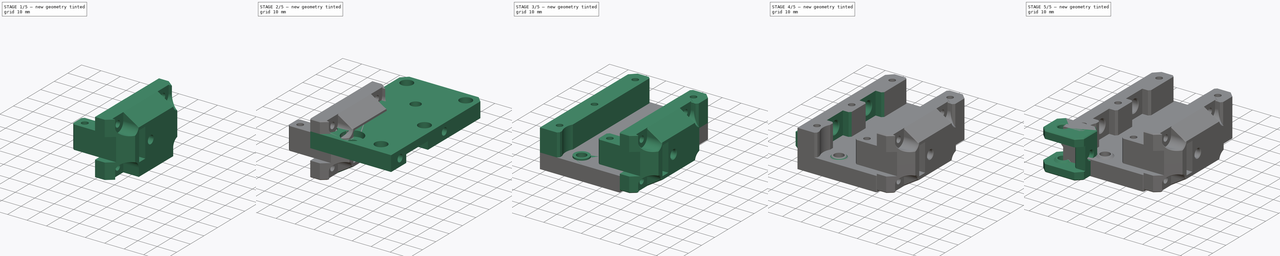
[diagram: build sequence overview — one tinted view per stage of 5, left to right]
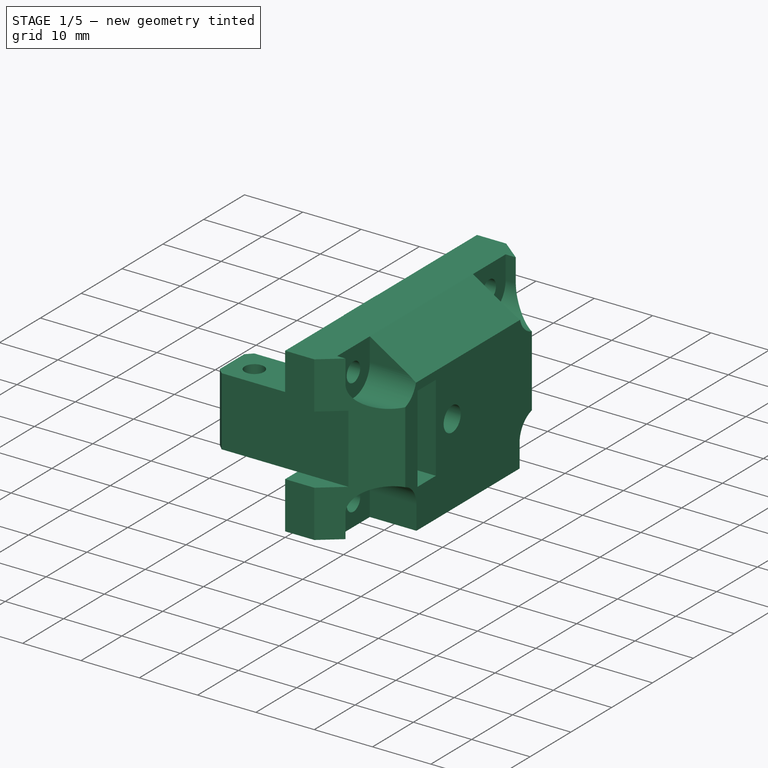
[diagram: stage 1 of 5 — iso view after this stage's code; geometry added in this stage tinted green]
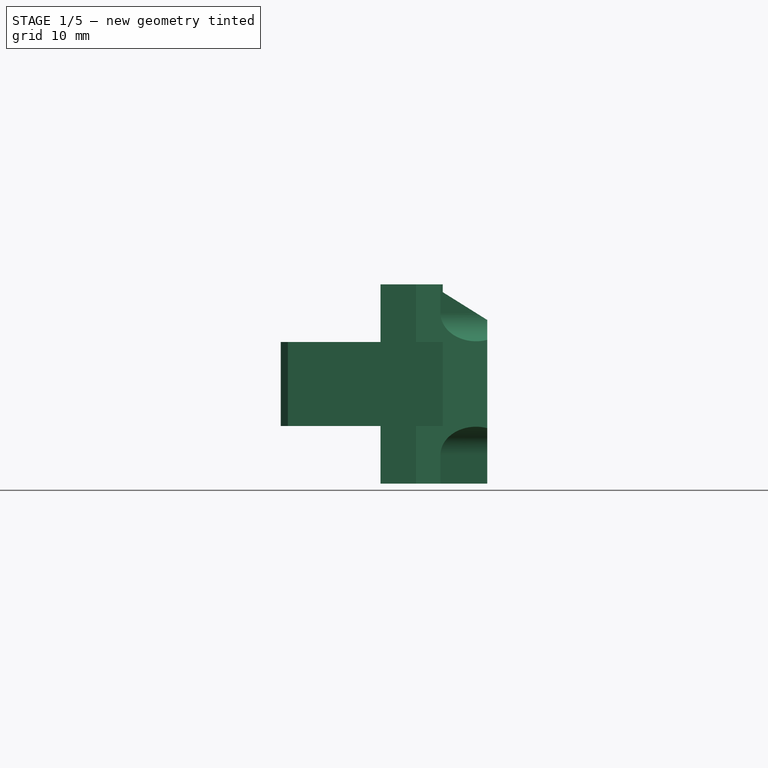
[diagram: stage 1 of 5 — front view after this stage's code; geometry added in this stage tinted green]
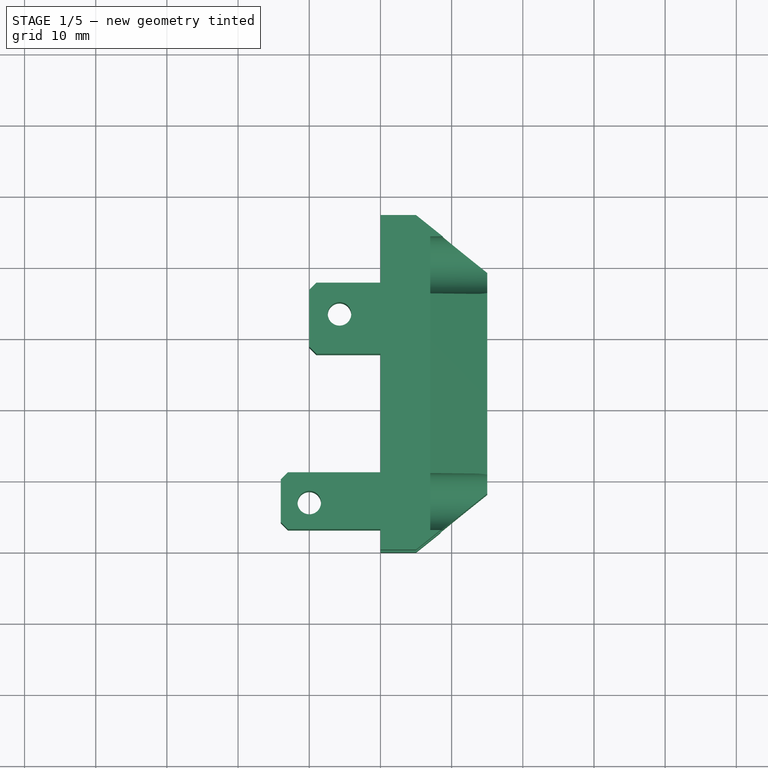
[diagram: stage 1 of 5 — top view after this stage's code; geometry added in this stage tinted green]
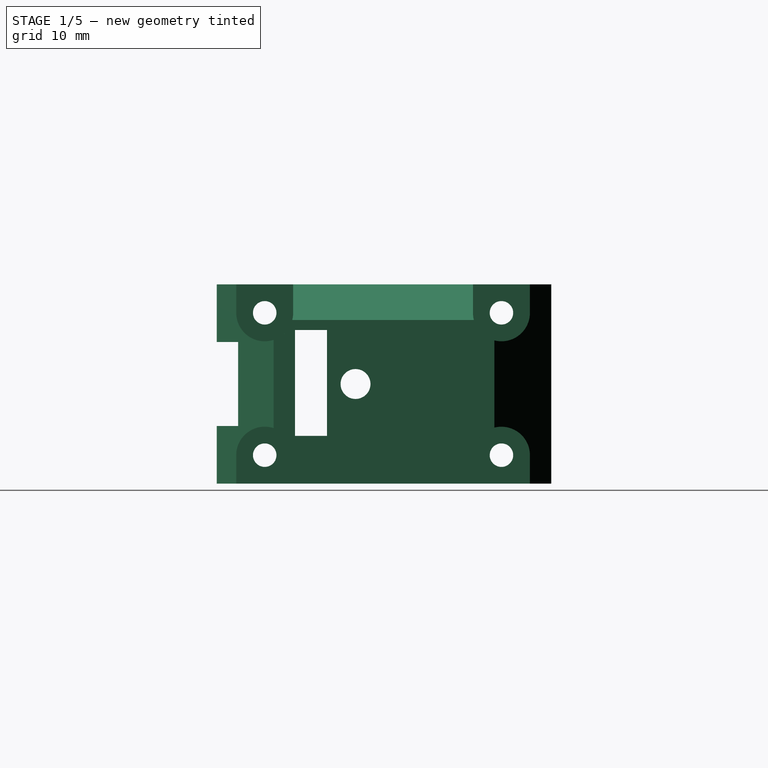
[diagram: stage 1 of 5 — right view after this stage's code; geometry added in this stage tinted green]
FCSTD DOCUMENT  (FreeCAD 0.19R24291 (Git))
Label: idex-motor-mount
License: All rights reserved
LicenseURL: http://en.wikipedia.org/wiki/All_rights_reserved
objects: Sketcher::SketchObject×42, PartDesign::Pocket×30, PartDesign::Chamfer×22, PartDesign::Pad×14, Part::Feature×5, PartDesign::Body×5, PartDesign::Plane×3, PartDesign::Fillet×1, PartDesign::FeatureBase×1
note: 190 computed .brp shape members not serialized (recipe doc carries the construction recipe); baked Part::Feature solids carry a one-line shape summary decoded from their .brp

FEATURE [Sketcher::SketchObject] Sketch030
  FullyConstrained = true
  MapMode = 5
  Placement = pos=(0,0,0) rot=(0.57735,0.57735,0.57735;2.0944rad)
  Support = -> [YZ_Plane003]
  sketch-geometry (4):
    g0: LineSegment StartX=0 StartY=14 StartZ=0 EndX=47 EndY=14 EndZ=0
    g1: LineSegment StartX=47 StartY=14 StartZ=0 EndX=47 EndY=-14 EndZ=0
    g2: LineSegment StartX=47 StartY=-14 StartZ=0 EndX=0 EndY=-14 EndZ=0
    g3: LineSegment StartX=0 StartY=-14 StartZ=0 EndX=0 EndY=14 EndZ=0
  constraints (12):
    c: Coincident(g0,g1)
    c: Coincident(g1,g2)
    c: Coincident(g2,g3)
    c: Coincident(g3,g0)
    c: Horizontal(g0)
    c: Horizontal(g2)
    c: Vertical(g1)
    c: Vertical(g3)
    c: PointOnObject(g0,g-2)
    c: DistanceY(g1,g1) = 28
    c: DistanceY(g-1,g0) = 14
    c: DistanceX(g0,g0) = 47
FEATURE [PartDesign::Pad] Pad010
  Direction = (1,1,1)
  Length = 15
  Length2 = 100
  Placement = pos=(0,0,0) rot=(0.57735,0.57735,0.57735;2.0944rad)
  Profile = -> Sketch030
  Type = 0
FEATURE [Sketcher::SketchObject] Sketch031
  FullyConstrained = true
  MapMode = 5
  Support = -> [XY_Plane003]
  sketch-geometry (6):
    g0: LineSegment StartX=0 StartY=27.65 StartZ=0 EndX=0 EndY=11.35 EndZ=0
    g1: LineSegment StartX=0 StartY=11.35 StartZ=0 EndX=5 EndY=11.35 EndZ=0
    g2: LineSegment StartX=5 StartY=11.35 StartZ=0 EndX=8 EndY=14.35 EndZ=0
    g3: LineSegment StartX=8 StartY=14.35 StartZ=0 EndX=8 EndY=24.65 EndZ=0
    g4: LineSegment StartX=8 StartY=24.65 StartZ=0 EndX=5 EndY=27.65 EndZ=0
    g5: LineSegment StartX=5 StartY=27.65 StartZ=0 EndX=0 EndY=27.65 EndZ=0
  constraints (18):
    c: PointOnObject(g0,g-2)
    c: PointOnObject(g0,g-2)
    c: Coincident(g0,g1)
    c: Horizontal(g1)
    c: Coincident(g1,g2)
    c: Coincident(g2,g3)
    c: Vertical(g3)
    c: Coincident(g3,g4)
    c: Coincident(g4,g5)
    c: Coincident(g5,g0)
    c: Horizontal(g5)
    c: Vertical(g4,g1)
    c: DistanceX(g4,g3) = 3
    c: DistanceY(g3,g4) = 3
    c: DistanceY(g1,g2) = 3
    c: DistanceY(g-1,g0) = 11.35
    c: DistanceY(g-1,g0) = 27.65
    c: DistanceX(g5,g5) = 5
FEATURE [PartDesign::Pocket] Pocket019
  BaseFeature = -> Pad010
  Length = 20.3
  Length2 = 100
  Midplane = true
  Placement = pos=(0,0,0) rot=(0.57735,0.57735,0.57735;2.0944rad)
  Profile = -> Sketch031
  Type = 0
FEATURE [Sketcher::SketchObject] Sketch032
  FullyConstrained = true
  MapMode = 5
  Placement = pos=(15,-3.3e-15,3.3e-15) rot=(0.57735,0.57735,0.57735;2.0944rad)
  Support = -> [Pocket019]
  sketch-geometry (1):
    g0: Circle CenterX=19.5 CenterY=0 CenterZ=0 NormalX=0 NormalY=0 NormalZ=1 AngleXU=0 Radius=2.1
  constraints (3):
    c: PointOnObject(g0,g-1)
    c: Radius(g0) = 2.1
    c: DistanceX(g-1,g0) = 19.5
FEATURE [PartDesign::Pocket] Pocket020
  BaseFeature = -> Pocket019
  Length = 5
  Length2 = 100
  Placement = pos=(0,0,0) rot=(0.57735,0.57735,0.57735;2.0944rad)
  Profile = -> Sketch032
  Type = 1
FEATURE [PartDesign::Chamfer] Chamfer015
  Angle = 45
  Base = -> Pocket020 [Edge7]
  BaseFeature = -> Pocket020
  ChamferType = 1
  FlipDirection = false
  Placement = pos=(0,0,0) rot=(0.57735,0.57735,0.57735;2.0944rad)
  Size = 10
  Size2 = 8
  SupportTransform = false
FEATURE [PartDesign::Chamfer] Chamfer016
  Angle = 45
  Base = -> Chamfer015 [Edge17]
  BaseFeature = -> Chamfer015
  ChamferType = 1
  FlipDirection = false
  Placement = pos=(0,0,0) rot=(0.57735,0.57735,0.57735;2.0944rad)
  Size = 8
  Size2 = 10
  SupportTransform = false
FEATURE [PartDesign::Plane] DatumPlane002
  AttachmentOffset = pos=(0,0,7) rot=(0,0,1;0rad)
  Length = 84
  MapMode = 5
  Placement = pos=(7,-1.6e-15,1.6e-15) rot=(0.57735,0.57735,0.57735;2.0944rad)
  ResizeMode = 0
  Support = -> [YZ_Plane003]
  Width = 62
FEATURE [Sketcher::SketchObject] Sketch033
  FullyConstrained = true
  MapMode = 5
  Placement = pos=(7,-1.6e-15,1.6e-15) rot=(0.57735,0.57735,0.57735;2.0944rad)
  Support = -> [DatumPlane002]
  sketch-geometry (4):
    g0: Circle CenterX=6.74 CenterY=10 CenterZ=0 NormalX=0 NormalY=0 NormalZ=1 AngleXU=0 Radius=1.65
    g1: Circle CenterX=6.74 CenterY=-10 CenterZ=0 NormalX=0 NormalY=0 NormalZ=1 AngleXU=0 Radius=1.65
    g2: Circle CenterX=40 CenterY=-10 CenterZ=0 NormalX=0 NormalY=0 NormalZ=1 AngleXU=0 Radius=1.65
    g3: Circle CenterX=40 CenterY=10 CenterZ=0 NormalX=0 NormalY=0 NormalZ=1 AngleXU=0 Radius=1.65
  constraints (12):
    c: Horizontal(g3,g0)
    c: Horizontal(g1,g2)
    c: Vertical(g1,g0)
    c: Vertical(g3,g2)
    c: DistanceY(g1,g0) = 20
    c: DistanceY(g-1,g0) = 10
    c: DistanceX(g-1,g0) = 6.74
    c: DistanceX(g-1,g3) = 40
    c: Radius(g3) = 1.65
    c: Equal(g0,g1)
    c: Equal(g1,g2)
    c: Equal(g2,g3)
FEATURE [PartDesign::Pocket] Pocket021
  BaseFeature = -> Chamfer016
  Length = 5
  Length2 = 100
  Placement = pos=(0,0,0) rot=(0.57735,0.57735,0.57735;2.0944rad)
  Profile = -> Sketch033
  Type = 1
FEATURE [Sketcher::SketchObject] Sketch034
  ExternalGeometry = -> [Pocket021]
  FullyConstrained = true
  MapMode = 5
  Placement = pos=(7,0,0) rot=(0.57735,0.57735,-0.57735;4.18879rad)
  Support = -> [Pocket021]
  sketch-geometry (16):
    g0: ArcOfCircle CenterX=6.74 CenterY=10 CenterZ=0 NormalX=0 NormalY=0 NormalZ=1 AngleXU=0 Radius=4 StartAngle=3.14159 EndAngle=6.28319
    g1: ArcOfCircle CenterX=40 CenterY=10 CenterZ=0 NormalX=0 NormalY=0 NormalZ=1 AngleXU=0 Radius=4 StartAngle=3.14159 EndAngle=6.28319
    g2: ArcOfCircle CenterX=6.74 CenterY=-10 CenterZ=0 NormalX=0 NormalY=0 NormalZ=1 AngleXU=0 Radius=4 StartAngle=3.9e-15 EndAngle=3.14159
    g3: ArcOfCircle CenterX=40 CenterY=-10 CenterZ=0 NormalX=0 NormalY=0 NormalZ=1 AngleXU=0 Radius=4 StartAngle=0 EndAngle=3.14159
    g4: LineSegment StartX=2.74 StartY=10 StartZ=0 EndX=2.74 EndY=14 EndZ=0
    g5: LineSegment StartX=2.74 StartY=14 StartZ=0 EndX=10.74 EndY=14 EndZ=0
    g6: LineSegment StartX=10.74 StartY=14 StartZ=0 EndX=10.74 EndY=10 EndZ=0
    g7: LineSegment StartX=36 StartY=10 StartZ=0 EndX=36 EndY=14 EndZ=0
    g8: LineSegment StartX=36 StartY=14 StartZ=0 EndX=44 EndY=14 EndZ=0
    g9: LineSegment StartX=44 StartY=14 StartZ=0 EndX=44 EndY=10 EndZ=0
    g10: LineSegment StartX=2.74 StartY=-10 StartZ=0 EndX=2.74 EndY=-14 EndZ=0
    g11: LineSegment StartX=2.74 StartY=-14 StartZ=0 EndX=10.74 EndY=-14 EndZ=0
    g12: LineSegment StartX=10.74 StartY=-14 StartZ=0 EndX=10.74 EndY=-10 EndZ=0
    g13: LineSegment StartX=36 StartY=-10 StartZ=0 EndX=36 EndY=-14 EndZ=0
    g14: LineSegment StartX=36 StartY=-14 StartZ=0 EndX=44 EndY=-14 EndZ=0
    g15: LineSegment StartX=44 StartY=-14 StartZ=0 EndX=44 EndY=-10 EndZ=0
  constraints (44):
    c: Coincident(g0,g-3)
    c: Coincident(g1,g-5)
    c: Horizontal(g0,g0)
    c: Horizontal(g0,g1)
    c: Horizontal(g1,g1)
    c: Coincident(g2,g-4)
    c: Coincident(g3,g-6)
    c: Horizontal(g2,g2)
    c: Horizontal(g2,g3)
    c: Horizontal(g3,g3)
    c: Horizontal(g3,g3)
    c: Equal(g0,g2)
    c: Equal(g2,g3)
    c: Equal(g3,g1)
    c: Radius(g1) = 4
    c: Horizontal(g1,g1)
    c: Tangent(g0,g4) = 1.5708
    c: Coincident(g4,g5)
    c: PointOnObject(g5,g-7)
    c: Horizontal(g5)
    c: Coincident(g5,g6)
    c: Coincident(g6,g0)
    c: Vertical(g6)
    c: Tangent(g1,g7) = 1.5708
    c: Coincident(g7,g8)
    c: PointOnObject(g8,g-7)
    c: Horizontal(g8)
    c: Coincident(g8,g9)
    c: Coincident(g9,g1)
    c: Tangent(g2,g10) = -1.5708
    c: Coincident(g10,g11)
    c: PointOnObject(g11,g-8)
    c: Horizontal(g11)
    c: Coincident(g11,g12)
    c: Coincident(g12,g2)
    c: Tangent(g3,g13) = -1.5708
    c: Coincident(g13,g14)
    c: PointOnObject(g14,g-8)
    c: Horizontal(g14)
    c: Coincident(g14,g15)
    c: Coincident(g15,g3)
    c: Vertical(g15)
    c: Vertical(g9)
    c: Vertical(g12)
FEATURE [PartDesign::Pocket] Pocket022
  BaseFeature = -> Pocket021
  Length = 0
  Length2 = 100
  Placement = pos=(0,0,0) rot=(0.57735,0.57735,0.57735;2.0944rad)
  Profile = -> Sketch034
  Type = 3
  UpToFace = -> Pocket021 [Face2]
FEATURE [Sketcher::SketchObject] Sketch035
  ExternalGeometry = -> [Pocket022]
  FullyConstrained = false
  MapMode = 5
  Placement = pos=(15,-3.3e-15,3.3e-15) rot=(0.57735,0.57735,0.57735;2.0944rad)
  Support = -> [Pocket022]
  sketch-geometry (4):
    g0: LineSegment StartX=11 StartY=7.59509 StartZ=0 EndX=15.5 EndY=7.59509 EndZ=0
    g1: LineSegment StartX=15.5 StartY=7.59509 StartZ=0 EndX=15.5 EndY=-7.29208 EndZ=0
    g2: LineSegment StartX=15.5 StartY=-7.29208 StartZ=0 EndX=11 EndY=-7.29208 EndZ=0
    g3: LineSegment StartX=11 StartY=-7.29208 StartZ=0 EndX=11 EndY=7.59509 EndZ=0
  constraints (11):
    c: Coincident(g0,g1)
    c: Coincident(g1,g2)
    c: Coincident(g2,g3)
    c: Coincident(g3,g0)
    c: Horizontal(g0)
    c: Horizontal(g2)
    c: Vertical(g1)
    c: Vertical(g3)
    c: DistanceX(g-1,g-3) = 11.35
    c: DistanceX(g-1,g0) = 11
    c: DistanceX(g0,g0) = 4.5
FEATURE [PartDesign::Pocket] Pocket023
  BaseFeature = -> Pocket022
  Length = 5
  Length2 = 100
  Placement = pos=(0,0,0) rot=(0.57735,0.57735,0.57735;2.0944rad)
  Profile = -> Sketch035
  Type = 1
FEATURE [Sketcher::SketchObject] Sketch036
  ExternalGeometry = -> [Pocket023]
  FullyConstrained = true
  MapMode = 5
  Placement = pos=(8,0,1.8e-15) rot=(0.57735,0.57735,-0.57735;4.18879rad)
  Support = -> [Pocket023]
  sketch-geometry (1):
    g0: Circle CenterX=19.5 CenterY=0 CenterZ=0 NormalX=0 NormalY=0 NormalZ=1 AngleXU=0 Radius=2.625
  constraints (2):
    c: Coincident(g0,g-3)
    c: Radius(g0) = 2.625
FEATURE [PartDesign::Pocket] Pocket024
  BaseFeature = -> Pocket023
  Length = 3
  Length2 = 100
  Placement = pos=(0,0,0) rot=(0.57735,0.57735,0.57735;2.0944rad)
  Profile = -> Sketch036
  Type = 0
FEATURE [Sketcher::SketchObject] Sketch037
  ExternalGeometry = -> [Pocket024]
  FullyConstrained = true
  MapMode = 5
  Support = -> [XY_Plane003]
  sketch-geometry (8):
    g0: LineSegment StartX=0 StartY=27.65 StartZ=0 EndX=-10 EndY=27.65 EndZ=0
    g1: LineSegment StartX=-10 StartY=27.65 StartZ=0 EndX=-10 EndY=37.65 EndZ=0
    g2: LineSegment StartX=-10 StartY=37.65 StartZ=0 EndX=0 EndY=37.65 EndZ=0
    g3: LineSegment StartX=0 StartY=37.65 StartZ=0 EndX=0 EndY=27.65 EndZ=0
    g4: LineSegment StartX=0 StartY=11 StartZ=0 EndX=-14 EndY=11 EndZ=0
    g5: LineSegment StartX=-14 StartY=11 StartZ=0 EndX=-14 EndY=3 EndZ=0
    g6: LineSegment StartX=-14 StartY=3 StartZ=0 EndX=0 EndY=3 EndZ=0
    g7: LineSegment StartX=0 StartY=3 StartZ=0 EndX=0 EndY=11 EndZ=0
  constraints (23):
    c: Coincident(g0,g1)
    c: Coincident(g1,g2)
    c: Coincident(g2,g3)
    c: Coincident(g3,g0)
    c: Horizontal(g2)
    c: Vertical(g1)
    c: Vertical(g3)
    c: Coincident(g0,g-5)
    c: DistanceX(g2,g2) = 10
    c: DistanceY(g1,g1) = 10
    c: Coincident(g4,g5)
    c: Coincident(g5,g6)
    c: Coincident(g6,g7)
    c: Coincident(g7,g4)
    c: Horizontal(g4)
    c: Horizontal(g6)
    c: Vertical(g5)
    c: Vertical(g7)
    c: PointOnObject(g4,g-2)
    c: DistanceY(g4,g-4) = 0.35
    c: DistanceX(g4,g4) = 14
    c: DistanceY(g-1,g6) = 3
    c: Horizontal(g0)
FEATURE [PartDesign::Pad] Pad011
  BaseFeature = -> Pocket024
  Direction = (1,1,1)
  Length = 11.8
  Length2 = 100
  Midplane = true
  Placement = pos=(0,0,0) rot=(0.57735,0.57735,0.57735;2.0944rad)
  Profile = -> Sketch037
  Type = 0
FEATURE [Sketcher::SketchObject] Sketch038
  ExternalGeometry = -> [Pad011]
  FullyConstrained = true
  MapMode = 5
  Placement = pos=(0,0,0) rot=(0.57735,0.57735,-0.57735;4.18879rad)
  Support = -> [Pad011]
  sketch-geometry (4):
    g0: LineSegment StartX=3 StartY=-5.9 StartZ=0 EndX=0 EndY=-5.9 EndZ=0
    g1: LineSegment StartX=0 StartY=-5.9 StartZ=0 EndX=0 EndY=5.9 EndZ=0
    g2: LineSegment StartX=0 StartY=5.9 StartZ=0 EndX=3 EndY=5.9 EndZ=0
    g3: LineSegment StartX=3 StartY=5.9 StartZ=0 EndX=3 EndY=-5.9 EndZ=0
  constraints (11):
    c: Coincident(g0,g1)
    c: Coincident(g1,g2)
    c: Coincident(g2,g3)
    c: Coincident(g3,g0)
    c: Horizontal(g0)
    c: Horizontal(g2)
    c: Vertical(g1)
    c: Vertical(g3)
    c: Coincident(g0,g-3)
    c: PointOnObject(g1,g-2)
    c: Horizontal(g2,g-3)
FEATURE [PartDesign::Pocket] Pocket025
  BaseFeature = -> Pad011
  Length = 5
  Length2 = 100
  Placement = pos=(0,0,0) rot=(0.57735,0.57735,0.57735;2.0944rad)
  Profile = -> Sketch038
  Type = 1
FEATURE [Sketcher::SketchObject] Sketch039
  FullyConstrained = true
  MapMode = 5
  Placement = pos=(0,0,5.9) rot=(0,0,-1;1.5708rad)
  Support = -> [Pocket025]
  sketch-geometry (3):
    g0: GeomPoint X=-70 Y=0 Z=0
    g1: Circle CenterX=-33.25 CenterY=-5.75 CenterZ=0 NormalX=0 NormalY=0 NormalZ=1 AngleXU=0 Radius=1.65
    g2: Circle CenterX=-6.74 CenterY=-10 CenterZ=0 NormalX=0 NormalY=0 NormalZ=1 AngleXU=0 Radius=1.65
  constraints (8):
    c: PointOnObject(g0,g-1)
    c: DistanceX(g0,g-1) = 70
    c: Equal(g2,g1)
    c: Radius(g1) = 1.65
    c: DistanceX(g2,g-1) = 6.74
    c: DistanceY(g2,g-1) = 10
    c: DistanceY(g1,g-1) = 5.75
    c: DistanceX(g0,g1) = 36.75
FEATURE [PartDesign::Pocket] Pocket026
  BaseFeature = -> Pocket025
  Length = 5
  Length2 = 100
  Placement = pos=(0,0,0) rot=(0.57735,0.57735,0.57735;2.0944rad)
  Profile = -> Sketch039
  Type = 1
FEATURE [PartDesign::Chamfer] Chamfer017
  Angle = 45
  Base = -> Pocket026 [Edge124,Edge163,Edge157,Edge156]
  BaseFeature = -> Pocket026
  ChamferType = 0
  FlipDirection = false
  Placement = pos=(0,0,0) rot=(0.57735,0.57735,0.57735;2.0944rad)
  Size = 1
  Size2 = 1
  SupportTransform = false
FEATURE [PartDesign::Chamfer] Chamfer018
  Angle = 45
  Base = -> Chamfer017 [Edge115]
  BaseFeature = -> Chamfer017
  ChamferType = 1
  FlipDirection = false
  Placement = pos=(0,0,0) rot=(0.57735,0.57735,0.57735;2.0944rad)
  Size = 8
  Size2 = 5
  SupportTransform = false
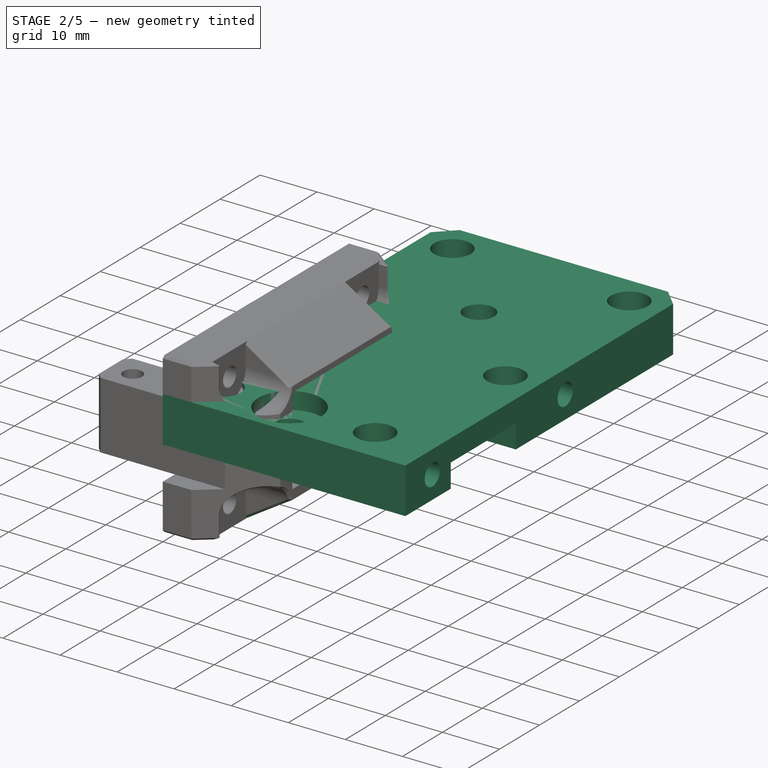
[diagram: stage 2 of 5 — iso view after this stage's code; geometry added in this stage tinted green]
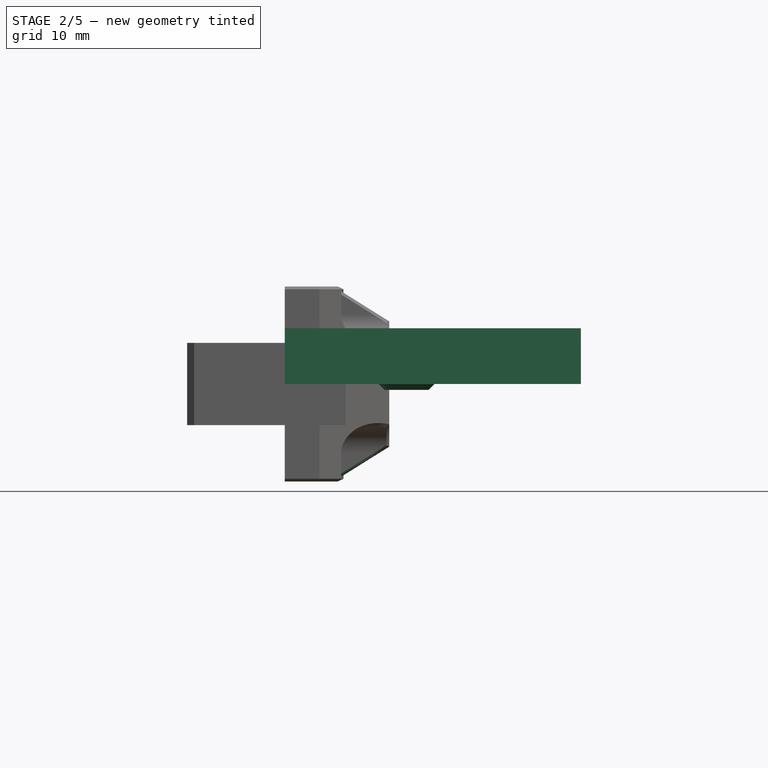
[diagram: stage 2 of 5 — front view after this stage's code; geometry added in this stage tinted green]
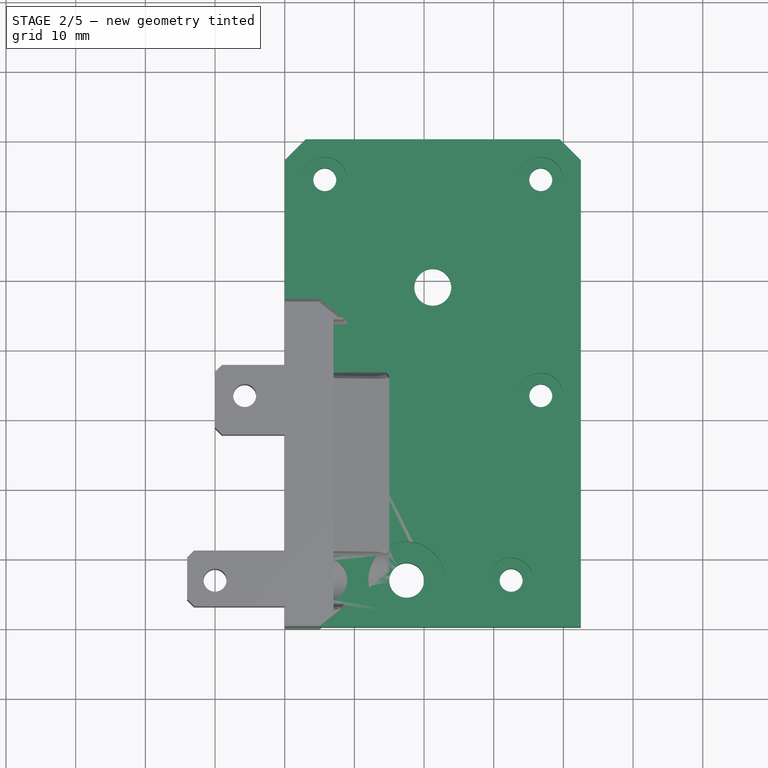
[diagram: stage 2 of 5 — top view after this stage's code; geometry added in this stage tinted green]
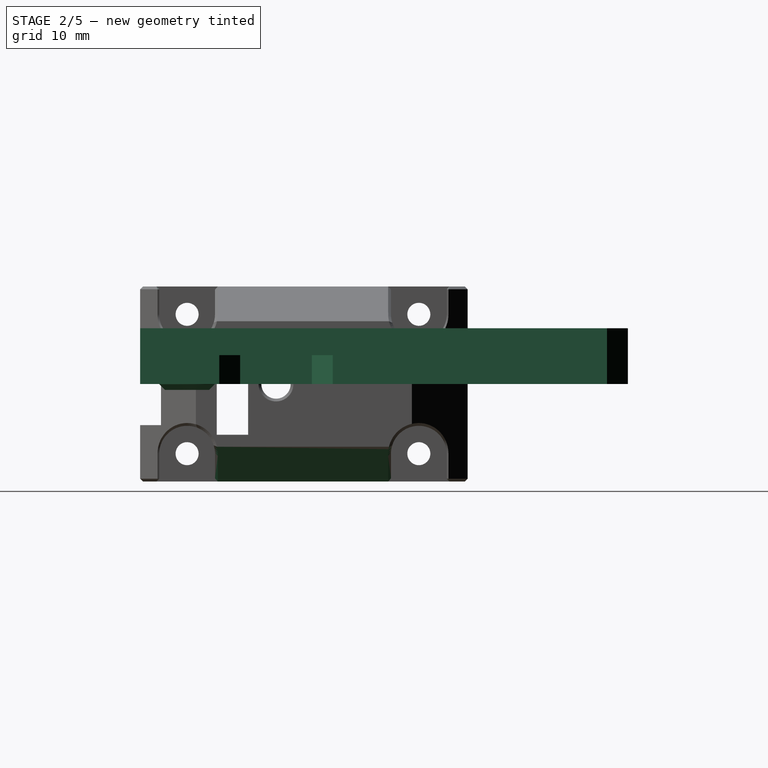
[diagram: stage 2 of 5 — right view after this stage's code; geometry added in this stage tinted green]
FEATURE [PartDesign::Body] Body001  label="idler-housing"
  Group = -> [Sketch001,Pad,DatumPlane,Sketch002,Pocket,Sketch003,Pocket001,Sketch004,Pad001,Sketch005,Pad002,Chamfer,Chamfer001,Chamfer002,Chamfer003,Sketch010,Pocket004,Sketch021,Pocket012,Chamfer010,Chamfer011]
  Origin = -> Origin001
  Placement = pos=(27.5,19.5,5) rot=(0,0,1;0rad)
  Tip = -> Chamfer011
FEATURE [Sketcher::SketchObject] Sketch022
  FullyConstrained = true
  MapMode = 5
  Support = -> [XY_Plane002]
  sketch-geometry (4):
    g0: LineSegment StartX=0 StartY=0 StartZ=0 EndX=42.5 EndY=0 EndZ=0
    g1: LineSegment StartX=42.5 StartY=0 StartZ=0 EndX=42.5 EndY=70 EndZ=0
    g2: LineSegment StartX=42.5 StartY=70 StartZ=0 EndX=0 EndY=70 EndZ=0
    g3: LineSegment StartX=0 StartY=70 StartZ=0 EndX=0 EndY=0 EndZ=0
  constraints (11):
    c: Coincident(g0,g1)
    c: Coincident(g1,g2)
    c: Coincident(g2,g3)
    c: Coincident(g3,g0)
    c: Horizontal(g0)
    c: Horizontal(g2)
    c: Vertical(g1)
    c: Vertical(g3)
    c: Coincident(g0,g-1)
    c: DistanceX(g2,g2) = 42.5
    c: DistanceY(g1,g1) = 70
FEATURE [PartDesign::Pad] Pad008
  Direction = (1,1,1)
  Length = 8
  Length2 = 100
  Profile = -> Sketch022
  Type = 0
FEATURE [Sketcher::SketchObject] Sketch023
  FullyConstrained = true
  MapMode = 5
  Placement = pos=(0,0,8) rot=(0,0,1;0rad)
  Support = -> [Pad008]
  sketch-geometry (1):
    g0: Circle CenterX=17.5 CenterY=6.74 CenterZ=0 NormalX=0 NormalY=0 NormalZ=1 AngleXU=0 Radius=2.5
  constraints (3):
    c: DistanceY(g-1,g0) = 6.74
    c: DistanceX(g-1,g0) = 17.5
    c: Radius(g0) = 2.5
FEATURE [PartDesign::Pocket] Pocket013
  BaseFeature = -> Pad008
  Length = 5
  Length2 = 100
  Profile = -> Sketch023
  Type = 1
FEATURE [Sketcher::SketchObject] Sketch024
  ExternalGeometry = -> [Pocket013]
  FullyConstrained = true
  MapMode = 5
  Placement = pos=(0,0,0) rot=(1,0,0;3.14159rad)
  Support = -> [Pocket013]
  sketch-geometry (6):
    g0: LineSegment StartX=42.5 StartY=-11.35 StartZ=0 EndX=23.35 EndY=-11.35 EndZ=0
    g1: LineSegment StartX=23.35 StartY=-11.35 StartZ=0 EndX=20.35 EndY=-14.35 EndZ=0
    g2: LineSegment StartX=20.35 StartY=-14.35 StartZ=0 EndX=20.35 EndY=-24.65 EndZ=0
    g3: LineSegment StartX=20.35 StartY=-24.65 StartZ=0 EndX=23.35 EndY=-27.65 EndZ=0
    g4: LineSegment StartX=23.35 StartY=-27.65 StartZ=0 EndX=42.5 EndY=-27.65 EndZ=0
    g5: LineSegment StartX=42.5 StartY=-27.65 StartZ=0 EndX=42.5 EndY=-11.35 EndZ=0
  constraints (18):
    c: PointOnObject(g0,g-3)
    c: Horizontal(g0)
    c: Coincident(g0,g1)
    c: Coincident(g1,g2)
    c: Vertical(g2)
    c: Coincident(g2,g3)
    c: Coincident(g3,g4)
    c: PointOnObject(g4,g-3)
    c: Horizontal(g4)
    c: Coincident(g4,g5)
    c: Coincident(g5,g0)
    c: Vertical(g0,g3)
    c: DistanceY(g3,g2) = 3
    c: DistanceY(g1,g0) = 3
    c: DistanceX(g1,g0) = 3
    c: DistanceX(g0,g0) = 19.15
    c: DistanceY(g0,g-3) = 11.35
    c: DistanceY(g4,g-3) = 27.65
FEATURE [PartDesign::Pocket] Pocket014
  BaseFeature = -> Pocket013
  Length = 4.15
  Length2 = 100
  Profile = -> Sketch024
  Type = 0
FEATURE [Sketcher::SketchObject] Sketch025
  ExternalGeometry = -> [Pocket014]
  FullyConstrained = true
  MapMode = 5
  Placement = pos=(0,0,0) rot=(1,0,0;3.14159rad)
  Support = -> [Pocket014]
  sketch-geometry (2):
    g0: Circle CenterX=17.5 CenterY=-6.74 CenterZ=0 NormalX=0 NormalY=0 NormalZ=1 AngleXU=0 Radius=2.5
    g1: Circle CenterX=17.5 CenterY=-6.74 CenterZ=0 NormalX=0 NormalY=0 NormalZ=1 AngleXU=0 Radius=4
  constraints (4):
    c: Coincident(g0,g-3)
    c: Coincident(g1,g0)
    c: Radius(g1) = 4
    c: Radius(g0) = 2.5
FEATURE [PartDesign::Pad] Pad009
  BaseFeature = -> Pocket014
  Direction = (1,1,1)
  Length = 0.85
  Length2 = 100
  Profile = -> Sketch025
  Type = 0
FEATURE [PartDesign::Chamfer] Chamfer012
  Angle = 45
  Base = -> Pad009 [Edge34]
  BaseFeature = -> Pad009
  ChamferType = 0
  FlipDirection = false
  Size = 0.84
  Size2 = 1
  SupportTransform = false
FEATURE [PartDesign::Chamfer] Chamfer013
  Angle = 45
  Base = -> Chamfer012 [Edge17,Edge20]
  BaseFeature = -> Chamfer012
  ChamferType = 0
  FlipDirection = false
  Size = 3
  Size2 = 1
  SupportTransform = false
FEATURE [Sketcher::SketchObject] Sketch026
  ExternalGeometry = -> [Chamfer013]
  FullyConstrained = true
  MapMode = 5
  Placement = pos=(0,0,8) rot=(0,0,1;0rad)
  Support = -> [Chamfer013]
  sketch-geometry (7):
    g0: Circle CenterX=5.75 CenterY=64.25 CenterZ=0 NormalX=0 NormalY=0 NormalZ=1 AngleXU=0 Radius=1.65
    g1: Circle CenterX=5.75 CenterY=33.25 CenterZ=0 NormalX=0 NormalY=0 NormalZ=1 AngleXU=0 Radius=1.65
    g2: Circle CenterX=21.25 CenterY=48.75 CenterZ=0 NormalX=0 NormalY=0 NormalZ=1 AngleXU=0 Radius=2.65
    g3: Circle CenterX=36.75 CenterY=33.25 CenterZ=0 NormalX=0 NormalY=0 NormalZ=1 AngleXU=0 Radius=1.65
    g4: Circle CenterX=36.75 CenterY=64.25 CenterZ=0 NormalX=0 NormalY=0 NormalZ=1 AngleXU=0 Radius=1.65
    g5: Circle CenterX=5.75 CenterY=6.74 CenterZ=0 NormalX=0 NormalY=0 NormalZ=1 AngleXU=0 Radius=1.65
    g6: Circle CenterX=32.5 CenterY=6.74 CenterZ=0 NormalX=0 NormalY=0 NormalZ=1 AngleXU=0 Radius=1.65
  constraints (21):
    c: Equal(g1,g5)
    c: Equal(g5,g6)
    c: Equal(g6,g4)
    c: Equal(g4,g0)
    c: Equal(g0,g3)
    c: Horizontal(g1,g3)
    c: Horizontal(g0,g4)
    c: Vertical(g0,g1)
    c: Vertical(g3,g4)
    c: DistanceY(g2,g-3) = 21.25
    c: DistanceX(g-1,g2) = 21.25
    c: Radius(g2) = 2.65
    c: Radius(g0) = 1.65
    c: DistanceX(g0,g4) = 31
    c: DistanceX(g0,g2) = 15.5
    c: DistanceY(g2,g4) = 15.5
    c: DistanceY(g3,g4) = 31
    c: DistanceY(g-1,g6) = 6.74
    c: DistanceX(g6,g-4) = 10
    c: Horizontal(g5,g6)
    c: Vertical(g5,g1)
FEATURE [PartDesign::Pocket] Pocket015
  BaseFeature = -> Chamfer013
  Length = 5
  Length2 = 100
  Profile = -> Sketch026
  Type = 1
FEATURE [Sketcher::SketchObject] Sketch027
  ExternalGeometry = -> [Pocket015]
  FullyConstrained = true
  MapMode = 5
  Placement = pos=(42.5,0,0) rot=(0.57735,0.57735,0.57735;2.0944rad)
  Support = -> [Pocket015]
  sketch-geometry (2):
    g0: Circle CenterX=6.74 CenterY=4 CenterZ=0 NormalX=0 NormalY=0 NormalZ=1 AngleXU=0 Radius=1.9
    g1: Circle CenterX=40 CenterY=4 CenterZ=0 NormalX=0 NormalY=0 NormalZ=1 AngleXU=0 Radius=1.9
  constraints (6):
    c: PointOnObject(g0,g-4)
    c: Horizontal(g0,g1)
    c: DistanceY(g0,g-4) = 4
    c: Equal(g0,g1)
    c: Radius(g1) = 1.9
    c: DistanceX(g-1,g1) = 40
FEATURE [PartDesign::Pocket] Pocket016
  BaseFeature = -> Pocket015
  Length = 6
  Length2 = 100
  Profile = -> Sketch027
  Type = 0
FEATURE [Sketcher::SketchObject] Sketch028
  ExternalGeometry = -> [Pocket016]
  FullyConstrained = true
  MapMode = 5
  Placement = pos=(0,0,0) rot=(1,0,0;3.14159rad)
  Support = -> [Pocket016]
  sketch-geometry (1):
    g0: Circle CenterX=21.25 CenterY=-48.75 CenterZ=0 NormalX=0 NormalY=0 NormalZ=1 AngleXU=0 Radius=5.55
  constraints (2):
    c: Coincident(g0,g-3)
    c: Radius(g0) = 5.55
FEATURE [PartDesign::Pocket] Pocket017
  BaseFeature = -> Pocket016
  Length = 4.5
  Length2 = 100
  Profile = -> Sketch028
  Type = 0
FEATURE [Sketcher::SketchObject] Sketch029
  ExternalGeometry = -> [Pocket017]
  FullyConstrained = true
  MapMode = 5
  Placement = pos=(0,0,8) rot=(0,0,1;0rad)
  Support = -> [Pocket017]
  sketch-geometry (7):
    g0: Circle CenterX=5.75 CenterY=64.25 CenterZ=0 NormalX=0 NormalY=0 NormalZ=1 AngleXU=0 Radius=3.2
    g1: Circle CenterX=5.75 CenterY=33.25 CenterZ=0 NormalX=0 NormalY=0 NormalZ=1 AngleXU=0 Radius=3.2
    g2: Circle CenterX=36.75 CenterY=33.25 CenterZ=0 NormalX=0 NormalY=0 NormalZ=1 AngleXU=0 Radius=3.2
    g3: Circle CenterX=36.75 CenterY=64.25 CenterZ=0 NormalX=0 NormalY=0 NormalZ=1 AngleXU=0 Radius=3.2
    g4: Circle CenterX=5.75 CenterY=6.74 CenterZ=0 NormalX=0 NormalY=0 NormalZ=1 AngleXU=0 Radius=3.2
    g5: Circle CenterX=17.5 CenterY=6.74 CenterZ=0 NormalX=0 NormalY=0 NormalZ=1 AngleXU=0 Radius=5.5
    g6: Circle CenterX=32.5 CenterY=6.74 CenterZ=0 NormalX=0 NormalY=0 NormalZ=1 AngleXU=0 Radius=3.2
  constraints (14):
    c: Coincident(g0,g-3)
    c: Coincident(g1,g-5)
    c: Coincident(g2,g-6)
    c: Coincident(g3,g-4)
    c: Coincident(g4,g-8)
    c: Coincident(g5,g-7)
    c: Coincident(g6,g-9)
    c: Equal(g4,g6)
    c: Equal(g6,g2)
    c: Equal(g2,g1)
    c: Equal(g1,g3)
    c: Equal(g3,g0)
    c: Radius(g0) = 3.2
    c: Radius(g5) = 5.5
FEATURE [PartDesign::Pocket] Pocket018
  BaseFeature = -> Pocket017
  Length = 3
  Length2 = 100
  Profile = -> Sketch029
  Type = 0
FEATURE [PartDesign::Chamfer] Chamfer019
  Angle = 45
  Base = -> Chamfer018 [Edge78]
  BaseFeature = -> Chamfer018
  ChamferType = 1
  FlipDirection = false
  Placement = pos=(0,0,0) rot=(0.57735,0.57735,0.57735;2.0944rad)
  Size = 5
  Size2 = 8
  SupportTransform = false
FEATURE [PartDesign::Chamfer] Chamfer020
  Angle = 45
  Base = -> Chamfer019 [Edge88,Edge27,Edge26,Edge25,Edge5,Edge37,Edge47,Edge81,Edge23,Edge24,Edge18,Edge1,Edge15,Edge22,Edge20,Edge19,Edge4,Edge33,Edge44,Edge43,Edge80,Edge89,Edge41,Edge46,Edge45,Edge8,Edge49,Edge50,Edge76,Edge79,Edge87,Edge84,Edge9]
  BaseFeature = -> Chamfer019
  ChamferType = 0
  FlipDirection = false
  Placement = pos=(0,0,0) rot=(0.57735,0.57735,0.57735;2.0944rad)
  Size = 0.4
  Size2 = 1
  SupportTransform = false
FEATURE [PartDesign::Body] Body002  label="outer-body"
  Group = -> [Sketch022,Pad008,Sketch023,Pocket013,Sketch024,Pocket014,Sketch025,Pad009,Chamfer012,Chamfer013,Sketch026,Pocket015,Sketch027,Pocket016,Sketch028,Pocket017,Sketch029,Pocket018,Chamfer014,Pad013]
  Origin = -> Origin002
  Placement = pos=(0,0,21) rot=(0,0,1;0rad)
  Tip = -> Pad013
FEATURE [PartDesign::Pocket] Pocket029
  BaseFeature = -> Chamfer020
  Length = 2
  Length2 = 100
  Placement = pos=(0,0,0) rot=(0.57735,0.57735,0.57735;2.0944rad)
  Profile = -> Chamfer020 [Face95]
  Type = 0
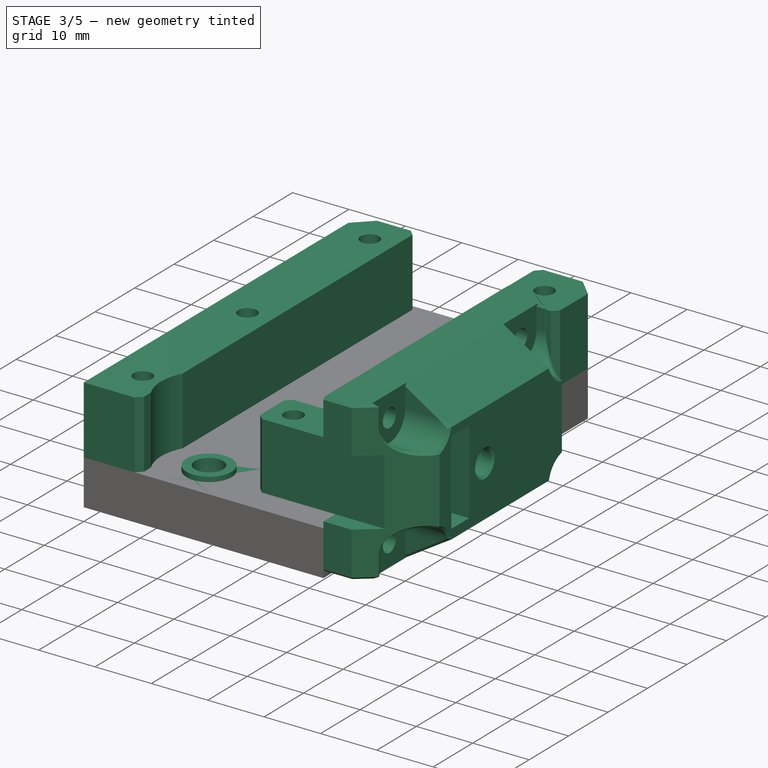
[diagram: stage 3 of 5 — iso view after this stage's code; geometry added in this stage tinted green]
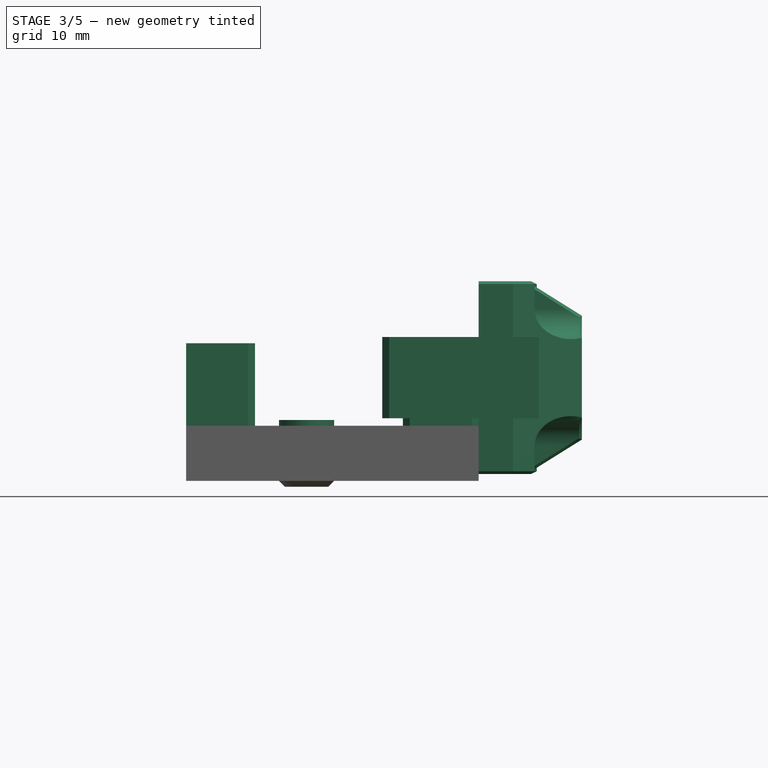
[diagram: stage 3 of 5 — front view after this stage's code; geometry added in this stage tinted green]
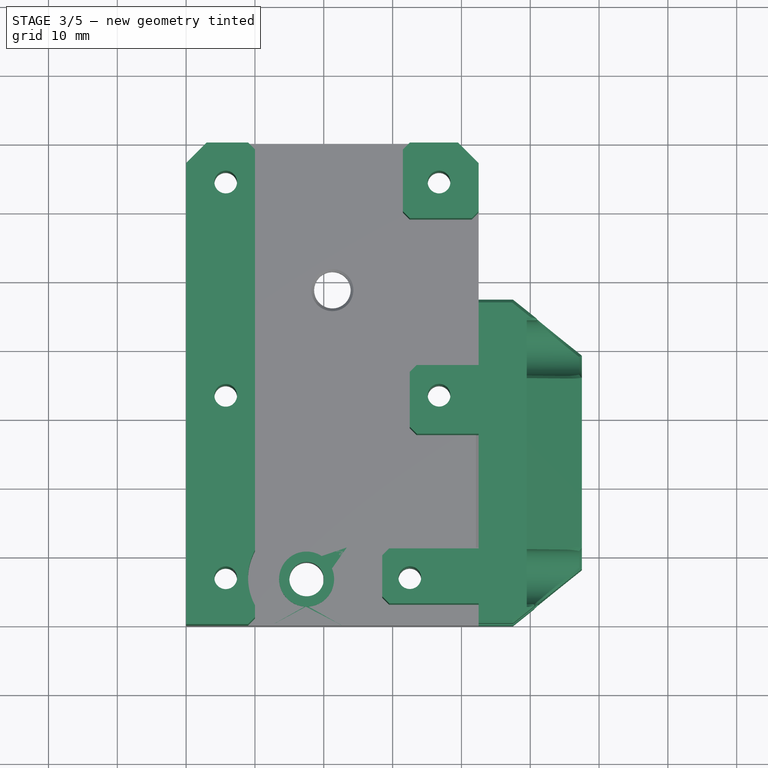
[diagram: stage 3 of 5 — top view after this stage's code; geometry added in this stage tinted green]
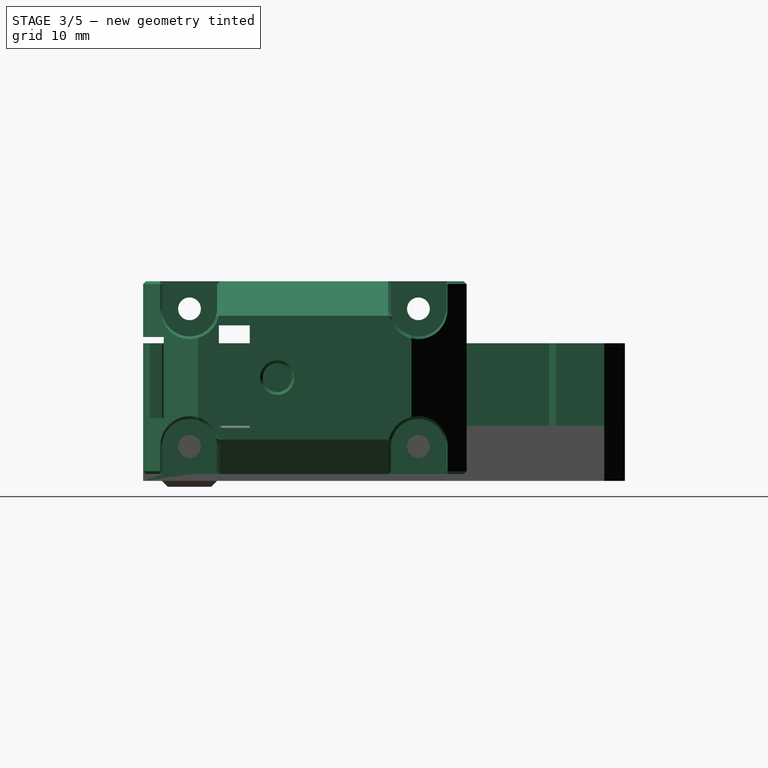
[diagram: stage 3 of 5 — right view after this stage's code; geometry added in this stage tinted green]
FEATURE [PartDesign::Pad] Pad003
  Direction = (1,1,1)
  Length = 8
  Length2 = 100
  Profile = -> Sketch
  Type = 0
FEATURE [PartDesign::Plane] DatumPlane001
  AttachmentOffset = pos=(0,0,15) rot=(0,0,1;0rad)
  Length = 83.5156
  MapMode = 5
  Placement = pos=(0,0,15) rot=(0,0,1;0rad)
  ResizeMode = 0
  Support = -> [XY_Plane]
  Width = 111.016
FEATURE [Sketcher::SketchObject] Sketch006
  ExternalGeometry = -> [Pad003]
  FullyConstrained = true
  MapMode = 5
  Placement = pos=(0,0,8) rot=(0,0,1;0rad)
  Support = -> [Pad003]
  sketch-geometry (6):
    g0: LineSegment StartX=42.5 StartY=27.65 StartZ=0 EndX=23.35 EndY=27.65 EndZ=0
    g1: LineSegment StartX=23.35 StartY=27.65 StartZ=0 EndX=20.35 EndY=24.65 EndZ=0
    g2: LineSegment StartX=20.35 StartY=24.65 StartZ=0 EndX=20.35 EndY=14.35 EndZ=0
    g3: LineSegment StartX=20.35 StartY=14.35 StartZ=0 EndX=23.35 EndY=11.35 EndZ=0
    g4: LineSegment StartX=23.35 StartY=11.35 StartZ=0 EndX=42.5 EndY=11.35 EndZ=0
    g5: LineSegment StartX=42.5 StartY=27.65 StartZ=0 EndX=42.5 EndY=11.35 EndZ=0
  constraints (18):
    c: PointOnObject(g0,g-3)
    c: Horizontal(g0)
    c: Coincident(g0,g1)
    c: Coincident(g1,g2)
    c: Vertical(g2)
    c: Coincident(g2,g3)
    c: Coincident(g3,g4)
    c: PointOnObject(g4,g-3)
    c: Horizontal(g4)
    c: DistanceY(g-3,g4) = 11.35
    c: DistanceY(g-3,g0) = 27.65
    c: Vertical(g3,g0)
    c: DistanceX(g0,g0) = 19.15
    c: DistanceX(g1,g0) = 3
    c: DistanceY(g1,g0) = 3
    c: DistanceY(g3,g2) = 3
    c: Coincident(g5,g0)
    c: Coincident(g5,g4)
FEATURE [PartDesign::Pocket] Pocket002
  BaseFeature = -> Pad003
  Length = 4.15
  Length2 = 100
  Profile = -> Sketch006
  Type = 0
FEATURE [Sketcher::SketchObject] Sketch007
  ExternalGeometry = -> [Pocket002]
  FullyConstrained = true
  MapMode = 5
  Placement = pos=(0,0,8) rot=(0,0,1;0rad)
  Support = -> [Pocket002]
  sketch-geometry (6):
    g0: LineSegment StartX=0 StartY=70 StartZ=0 EndX=10 EndY=70 EndZ=0
    g1: LineSegment StartX=10 StartY=70 StartZ=0 EndX=10 EndY=0 EndZ=0
    g2: LineSegment StartX=10 StartY=0 StartZ=0 EndX=0 EndY=0 EndZ=0
    g3: LineSegment StartX=0 StartY=0 StartZ=0 EndX=0 EndY=70 EndZ=0
    g4: Circle CenterX=5.75 CenterY=64.25 CenterZ=0 NormalX=0 NormalY=0 NormalZ=1 AngleXU=0 Radius=1.65
    g5: Circle CenterX=5.75 CenterY=33.25 CenterZ=0 NormalX=0 NormalY=0 NormalZ=1 AngleXU=0 Radius=1.65
  constraints (15):
    c: Coincident(g0,g1)
    c: Coincident(g1,g2)
    c: Coincident(g2,g3)
    c: Coincident(g3,g0)
    c: Horizontal(g0)
    c: Horizontal(g2)
    c: Vertical(g1)
    c: Vertical(g3)
    c: Coincident(g0,g-3)
    c: PointOnObject(g1,g-1)
    c: DistanceX(g0,g0) = 10
    c: Coincident(g4,g-4)
    c: Coincident(g5,g-5)
    c: Radius(g4) = 1.65
    c: Radius(g5) = 1.65
FEATURE [PartDesign::Pad] Pad004
  BaseFeature = -> Pocket002
  Direction = (1,1,1)
  Length = 12
  Length2 = 100
  Profile = -> Sketch007
  Type = 0
FEATURE [Sketcher::SketchObject] Sketch008
  ExternalGeometry = -> [Pad004]
  FullyConstrained = true
  MapMode = 5
  Placement = pos=(0,0,8) rot=(0,0,1;0rad)
  Support = -> [Pad004]
  sketch-geometry (1):
    g0: Circle CenterX=17.5 CenterY=6.74 CenterZ=0 NormalX=0 NormalY=0 NormalZ=1 AngleXU=0 Radius=8.5
  constraints (2):
    c: Coincident(g0,g-4)
    c: Radius(g0) = 8.5
FEATURE [PartDesign::Pocket] Pocket003
  BaseFeature = -> Pad004
  Length = 0
  Length2 = 100
  Profile = -> Sketch008
  Type = 3
  UpToFace = -> Pad004 [Face25]
FEATURE [PartDesign::Chamfer] Chamfer004
  Angle = 45
  Base = -> Pocket003 [Edge8,Edge43]
  BaseFeature = -> Pocket003
  ChamferType = 0
  FlipDirection = false
  Size = 3
  Size2 = 1
  SupportTransform = false
FEATURE [Sketcher::SketchObject] Sketch011
  ExternalGeometry = -> [Chamfer004]
  FullyConstrained = true
  MapMode = 5
  Placement = pos=(0,0,8) rot=(0,0,1;0rad)
  Support = -> [Chamfer004]
  sketch-geometry (6):
    g0: LineSegment StartX=42.5 StartY=67 StartZ=0 EndX=39.5 EndY=70 EndZ=0
    g1: LineSegment StartX=39.5 StartY=70 StartZ=0 EndX=31.5 EndY=70 EndZ=0
    g2: LineSegment StartX=31.5 StartY=70 StartZ=0 EndX=31.5 EndY=59 EndZ=0
    g3: LineSegment StartX=31.5 StartY=59 StartZ=0 EndX=42.5 EndY=59 EndZ=0
    g4: LineSegment StartX=42.5 StartY=59 StartZ=0 EndX=42.5 EndY=67 EndZ=0
    g5: Circle CenterX=36.75 CenterY=64.25 CenterZ=0 NormalX=0 NormalY=0 NormalZ=1 AngleXU=0 Radius=1.65
  constraints (15):
    c: Coincident(g-3,g0)
    c: Coincident(g0,g-3)
    c: Coincident(g0,g1)
    c: Horizontal(g1)
    c: Coincident(g1,g2)
    c: Vertical(g2)
    c: Coincident(g2,g3)
    c: Horizontal(g3)
    c: Coincident(g3,g4)
    c: Coincident(g4,g0)
    c: Vertical(g4)
    c: Coincident(g5,g-4)
    c: Radius(g5) = 1.65
    c: DistanceX(g1,g0) = 11
    c: DistanceY(g3,g0) = 11
FEATURE [PartDesign::Pad] Pad005
  BaseFeature = -> Chamfer004
  Direction = (1,1,1)
  Length = 10
  Length2 = 100
  Profile = -> Sketch011
  Type = 3
  UpToFace = -> Chamfer004 [Face33]
FEATURE [PartDesign::Chamfer] Chamfer005
  Angle = 45
  Base = -> Pad005 [Edge30,Edge82,Edge88,Edge87,Edge75]
  BaseFeature = -> Pad005
  ChamferType = 0
  FlipDirection = false
  Size = 1
  Size2 = 1
  SupportTransform = false
FEATURE [Sketcher::SketchObject] Sketch012
  ExternalGeometry = -> [Chamfer005]
  FullyConstrained = true
  MapMode = 5
  Placement = pos=(0,0,8) rot=(0,0,1;0rad)
  Support = -> [Chamfer005]
  sketch-geometry (1):
    g0: Circle CenterX=32.5 CenterY=6.74 CenterZ=0 NormalX=0 NormalY=0 NormalZ=1 AngleXU=0 Radius=1.65
  constraints (3):
    c: Radius(g0) = 1.65
    c: Horizontal(g0,g-3)
    c: DistanceX(g0,g-4) = 10
FEATURE [PartDesign::Pocket] Pocket005
  BaseFeature = -> Chamfer005
  Length = 5
  Length2 = 100
  Profile = -> Sketch012
  Type = 1
FEATURE [Sketcher::SketchObject] Sketch013
  ExternalGeometry = -> [Pocket005]
  FullyConstrained = true
  MapMode = 5
  Placement = pos=(0,0,20) rot=(0,0,1;0rad)
  Support = -> [Pocket005]
  sketch-geometry (1):
    g0: Circle CenterX=5.75 CenterY=6.74 CenterZ=0 NormalX=0 NormalY=0 NormalZ=1 AngleXU=0 Radius=1.65
  constraints (3):
    c: Vertical(g0,g-3)
    c: Radius(g0) = 1.65
    c: DistanceY(g-1,g0) = 6.74
FEATURE [PartDesign::Pocket] Pocket006
  BaseFeature = -> Pocket005
  Length = 5
  Length2 = 100
  Profile = -> Sketch013
  Type = 1
FEATURE [Sketcher::SketchObject] Sketch014
  ExternalGeometry = -> [Pocket006]
  FullyConstrained = true
  MapMode = 5
  Placement = pos=(0,0,8) rot=(0,0,1;0rad)
  Support = -> [Pocket006]
  sketch-geometry (2):
    g0: Circle CenterX=17.5 CenterY=6.74 CenterZ=0 NormalX=0 NormalY=0 NormalZ=1 AngleXU=0 Radius=4
    g1: Circle CenterX=17.5 CenterY=6.74 CenterZ=0 NormalX=0 NormalY=0 NormalZ=1 AngleXU=0 Radius=2.5
  constraints (4):
    c: Coincident(g0,g-3)
    c: Coincident(g1,g0)
    c: Radius(g1) = 2.5
    c: Radius(g0) = 4
FEATURE [PartDesign::Pad] Pad006
  BaseFeature = -> Pocket006
  Direction = (1,1,1)
  Length = 0.85
  Length2 = 100
  Profile = -> Sketch014
  Type = 0
FEATURE [PartDesign::Chamfer] Chamfer014
  Angle = 45
  Base = -> Pocket018 [Face21,Edge26,Edge35,Edge36,Edge19,Edge82]
  BaseFeature = -> Pocket018
  ChamferType = 0
  FlipDirection = false
  Size = 0.4
  Size2 = 1
  SupportTransform = false
FEATURE [PartDesign::Body] Body  label="inner-body"
  Group = -> [Sketch,Pad003,DatumPlane001,Sketch006,Pocket002,Sketch007,Pad004,Sketch008,Pocket003,Chamfer004,Sketch011,Pad005,Chamfer005,Sketch012,Pocket005,Sketch013,Pocket006,Sketch014,Pad006,Chamfer006,Sketch015,Pocket007,Sketch016,Pocket008,Sketch017,Pocket009,Chamfer007,Sketch018,Pad007,Chamfer008,Sketch019,Pocket010,Sketch020,Pocket011,Chamfer009,Sketch040,Pocket027,Fillet,Sketch041,Pad012,Chamfer021]
  Origin = -> Origin
  Placement = pos=(0,0,1) rot=(0,0,1;0rad)
  Tip = -> Chamfer021
FEATURE [PartDesign::Pad] Pad013
  BaseFeature = -> Chamfer014
  Direction = (1,1,1)
  Length = 1
  Length2 = 100
  Profile = -> Chamfer014 [Face34,Face37,Face38,Face36]
  Type = 0
FEATURE [PartDesign::Body] Body003  label="tesioner-cap-thread-insert"
  Group = -> [Sketch030,Pad010,Sketch031,Pocket019,Sketch032,Pocket020,Chamfer015,Chamfer016,DatumPlane002,Sketch033,Pocket021,Sketch034,Pocket022,Sketch035,Pocket023,Sketch036,Pocket024,Sketch037,Pad011,Sketch038,Pocket025,Sketch039,Pocket026,Chamfer017,Chamfer018,Chamfer019,Chamfer020,Pocket029]
  Origin = -> Origin003
  Placement = pos=(42.5,0,15) rot=(0,0,1;0rad)
  Tip = -> Pocket029
FEATURE [PartDesign::FeatureBase] Clone
  BaseFeature = -> Body003
  Placement = pos=(42.5,0,15) rot=(0,0,1;0rad)
FEATURE [Sketcher::SketchObject] Sketch042
  ExternalGeometry = -> [Clone]
  FullyConstrained = true
  MapMode = 5
  Placement = pos=(50.5,9e-16,15) rot=(0.57735,-0.57735,-0.57735;2.0944rad)
  Support = -> [Clone]
  sketch-geometry (7):
    g0: LineSegment StartX=-19.5 StartY=-4.2 StartZ=0 EndX=-15.8627 EndY=-2.1 EndZ=0
    g1: LineSegment StartX=-15.8627 StartY=-2.1 StartZ=0 EndX=-15.8627 EndY=2.1 EndZ=0
    g2: LineSegment StartX=-15.8627 StartY=2.1 StartZ=0 EndX=-19.5 EndY=4.2 EndZ=0
    g3: LineSegment StartX=-19.5 StartY=4.2 StartZ=0 EndX=-23.1373 EndY=2.1 EndZ=0
    g4: LineSegment StartX=-23.1373 StartY=2.1 StartZ=0 EndX=-23.1373 EndY=-2.1 EndZ=0
    g5: LineSegment StartX=-23.1373 StartY=-2.1 StartZ=0 EndX=-19.5 EndY=-4.2 EndZ=0
    g6: Circle CenterX=-19.5 CenterY=2.31e-14 CenterZ=0 NormalX=0 NormalY=0 NormalZ=1 AngleXU=0 Radius=4.2
  constraints (16):
    c: Coincident(g0,g1)
    c: Coincident(g1,g2)
    c: Coincident(g2,g3)
    c: Coincident(g3,g4)
    c: Coincident(g4,g5)
    c: Coincident(g5,g0)
    c: Equal(g0, g1-g5) x5
    c: PointOnObject(g0,g6)
    c: PointOnObject(g1,g6)
    c: PointOnObject(g2,g6)
    c: PointOnObject(g3,g6)
    c: PointOnObject(g4,g6)
    c: PointOnObject(g5,g6)
    c: Coincident(g6,g-3)
    c: Vertical(g0,g6)
    c: Radius(g6) = 4.2
FEATURE [PartDesign::Pocket] Pocket028
  BaseFeature = -> Clone
  Length = 3
  Length2 = 100
  Placement = pos=(42.5,0,15) rot=(0,0,1;0rad)
  Profile = -> Sketch042
  Refine = true
  Type = 0
FEATURE [PartDesign::Body] Body003002  label="tesioner-cap-nut"
  BaseFeature = -> Body003
  Group = -> [Clone,Sketch042,Pocket028]
  Origin = -> Origin004
  Placement = pos=(0,0,83) rot=(0,0,1;0rad)
  Tip = -> Pocket028
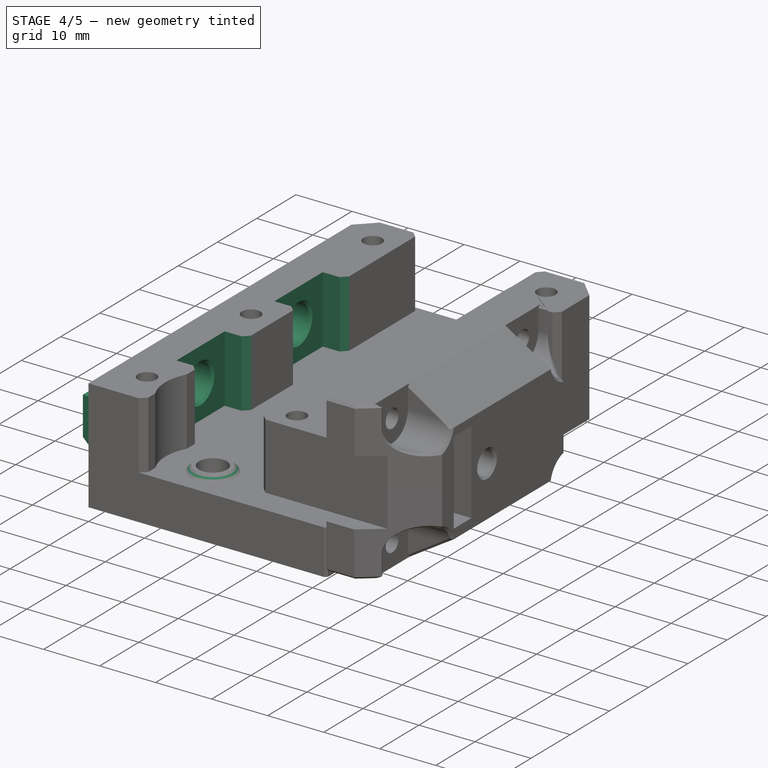
[diagram: stage 4 of 5 — iso view after this stage's code; geometry added in this stage tinted green]
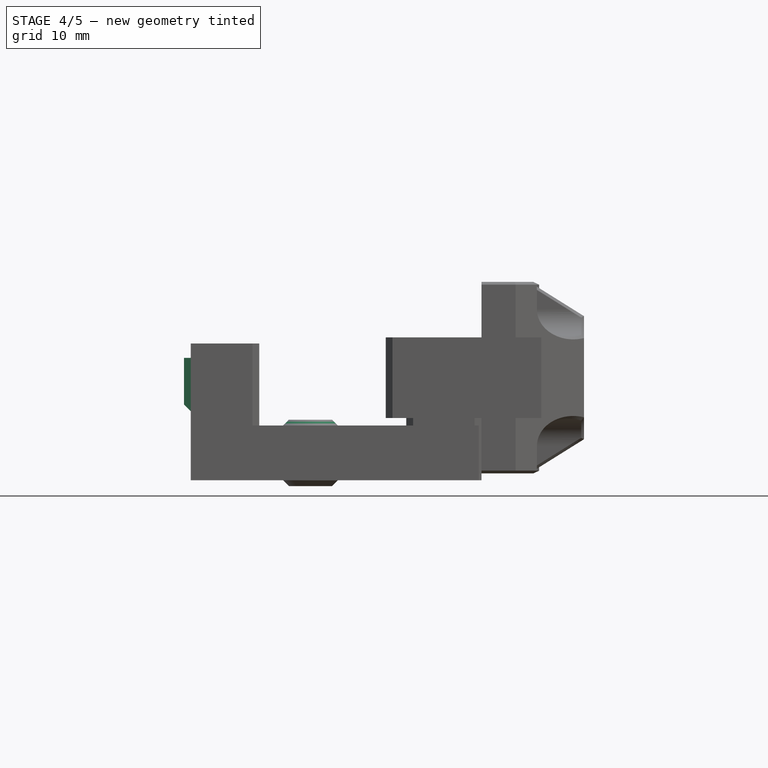
[diagram: stage 4 of 5 — front view after this stage's code; geometry added in this stage tinted green]
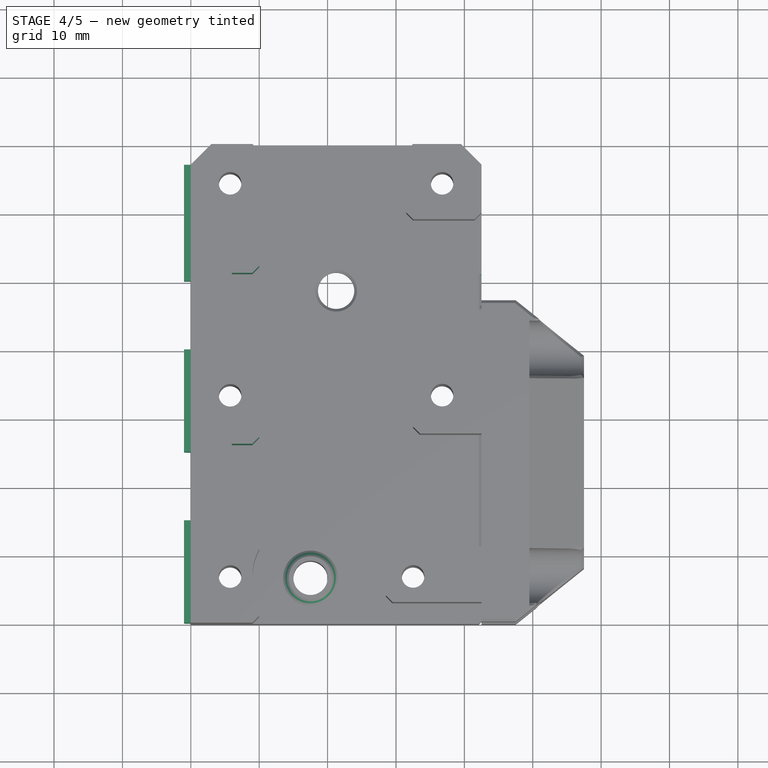
[diagram: stage 4 of 5 — top view after this stage's code; geometry added in this stage tinted green]
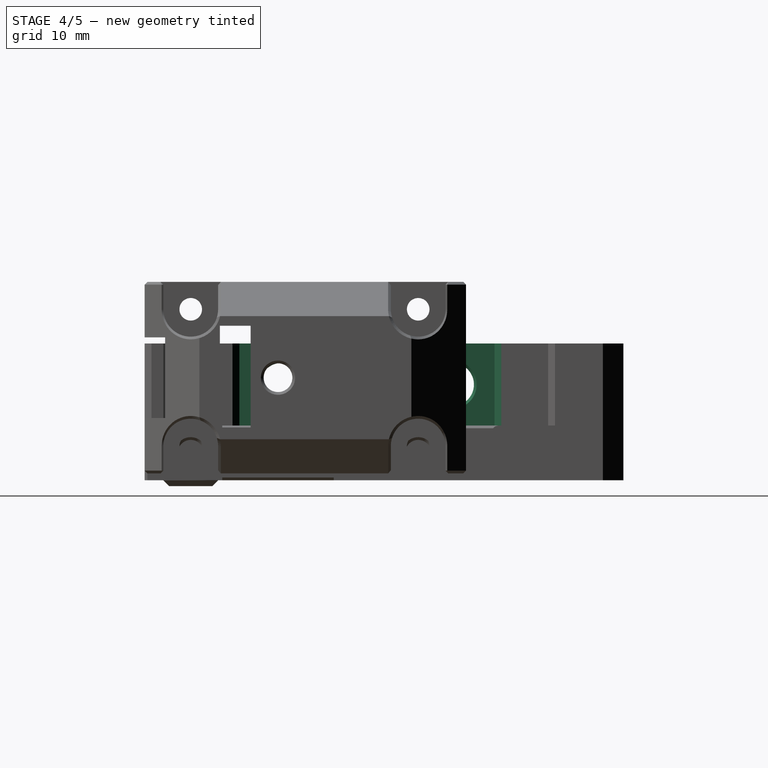
[diagram: stage 4 of 5 — right view after this stage's code; geometry added in this stage tinted green]
FEATURE [PartDesign::Chamfer] Chamfer006
  Angle = 45
  Base = -> Pad006 [Edge125]
  BaseFeature = -> Pad006
  ChamferType = 0
  FlipDirection = false
  Size = 0.84
  Size2 = 1
  SupportTransform = false
FEATURE [Sketcher::SketchObject] Sketch015
  ExternalGeometry = -> [Chamfer006]
  FullyConstrained = false
  MapMode = 5
  Placement = pos=(42.5,0,0) rot=(0.57735,0.57735,0.57735;2.0944rad)
  Support = -> [Chamfer006]
  sketch-geometry (2):
    g0: Circle CenterX=6.74 CenterY=4.11193 CenterZ=0 NormalX=0 NormalY=0 NormalZ=1 AngleXU=0 Radius=1.9
    g1: Circle CenterX=40 CenterY=4.11193 CenterZ=0 NormalX=0 NormalY=0 NormalZ=1 AngleXU=0 Radius=1.9
  constraints (5):
    c: Horizontal(g1,g0)
    c: DistanceX(g-3,g0) = 1.65
    c: DistanceX(g-1,g1) = 40
    c: Equal(g0,g1)
    c: Radius(g1) = 1.9
FEATURE [PartDesign::Pocket] Pocket007
  BaseFeature = -> Chamfer006
  Length = 6
  Length2 = 100
  Profile = -> Sketch015
  Type = 0
FEATURE [Sketcher::SketchObject] Sketch016
  ExternalGeometry = -> [Pocket007]
  FullyConstrained = true
  MapMode = 5
  Placement = pos=(10,0,0) rot=(0.57735,0.57735,0.57735;2.0944rad)
  Support = -> [Pocket007]
  sketch-geometry (2):
    g0: Circle CenterX=20 CenterY=14 CenterZ=0 NormalX=0 NormalY=0 NormalZ=1 AngleXU=0 Radius=3.15
    g1: Circle CenterX=45 CenterY=14 CenterZ=0 NormalX=0 NormalY=0 NormalZ=1 AngleXU=0 Radius=3.15
  constraints (6):
    c: Horizontal(g1,g0)
    c: DistanceX(g-1,g0) = 20
    c: DistanceY(g1,g-3) = 6
    c: Radius(g1) = 3.15
    c: Equal(g1,g0)
    c: DistanceX(g0,g1) = 25
FEATURE [PartDesign::Pocket] Pocket008
  BaseFeature = -> Pocket007
  Length = 5
  Length2 = 100
  Profile = -> Sketch016
  Type = 1
FEATURE [Sketcher::SketchObject] Sketch017
  ExternalGeometry = -> [Pocket008]
  FullyConstrained = true
  MapMode = 5
  Placement = pos=(0,0,20) rot=(0,0,1;0rad)
  Support = -> [Pocket008]
  sketch-geometry (8):
    g0: LineSegment StartX=10 StartY=51.15 StartZ=0 EndX=6 EndY=51.15 EndZ=0
    g1: LineSegment StartX=6 StartY=51.15 StartZ=0 EndX=6 EndY=38.85 EndZ=0
    g2: LineSegment StartX=6 StartY=38.85 StartZ=0 EndX=10 EndY=38.85 EndZ=0
    g3: LineSegment StartX=10 StartY=38.85 StartZ=0 EndX=10 EndY=51.15 EndZ=0
    g4: LineSegment StartX=10 StartY=26.15 StartZ=0 EndX=6 EndY=26.15 EndZ=0
    g5: LineSegment StartX=6 StartY=26.15 StartZ=0 EndX=6 EndY=13.85 EndZ=0
    g6: LineSegment StartX=6 StartY=13.85 StartZ=0 EndX=10 EndY=13.85 EndZ=0
    g7: LineSegment StartX=10 StartY=13.85 StartZ=0 EndX=10 EndY=26.15 EndZ=0
  constraints (24):
    c: Coincident(g0,g1)
    c: Coincident(g1,g2)
    c: Coincident(g2,g3)
    c: Coincident(g3,g0)
    c: Horizontal(g0)
    c: Horizontal(g2)
    c: Vertical(g1)
    c: Vertical(g3)
    c: Coincident(g4,g5)
    c: Coincident(g5,g6)
    c: Coincident(g6,g7)
    c: Coincident(g7,g4)
    c: Horizontal(g4)
    c: Horizontal(g6)
    c: Vertical(g5)
    c: Vertical(g7)
    c: Vertical(g4,g1)
    c: Vertical(g4,g2)
    c: Vertical(g2,g-4)
    c: DistanceX(g0,g0) = 4
    c: DistanceY(g-4,g0) = 3
    c: DistanceY(g2,g-4) = 3
    c: DistanceY(g-3,g4) = 3
    c: DistanceY(g6,g-3) = 3
FEATURE [PartDesign::Pocket] Pocket009
  BaseFeature = -> Pocket008
  Length = 0
  Length2 = 100
  Profile = -> Sketch017
  Type = 3
  UpToFace = -> Pocket008 [Face5]
FEATURE [PartDesign::Chamfer] Chamfer007
  Angle = 45
  Base = -> Pocket009 [Edge73,Edge65,Edge67,Edge59]
  BaseFeature = -> Pocket009
  ChamferType = 0
  FlipDirection = false
  Size = 1
  Size2 = 1
  SupportTransform = false
FEATURE [Sketcher::SketchObject] Sketch018
  ExternalGeometry = -> [Chamfer007]
  FullyConstrained = false
  MapMode = 5
  Placement = pos=(0,0,0) rot=(0.57735,-0.57735,-0.57735;2.0944rad)
  Support = -> [Chamfer007]
  sketch-geometry (12):
    g0: LineSegment StartX=-67 StartY=17.9 StartZ=0 EndX=-50 EndY=17.9 EndZ=0
    g1: LineSegment StartX=-50 StartY=17.9 StartZ=0 EndX=-50 EndY=10.9438 EndZ=0
    g2: LineSegment StartX=-50 StartY=10.9438 StartZ=0 EndX=-67 EndY=10.9438 EndZ=0
    g3: LineSegment StartX=-67 StartY=10.9438 StartZ=0 EndX=-67 EndY=17.9 EndZ=0
    g4: LineSegment StartX=-40 StartY=17.9 StartZ=0 EndX=-25 EndY=17.9 EndZ=0
    g5: LineSegment StartX=-25 StartY=17.9 StartZ=0 EndX=-25 EndY=10.7925 EndZ=0
    g6: LineSegment StartX=-25 StartY=10.7925 StartZ=0 EndX=-40 EndY=10.7925 EndZ=0
    g7: LineSegment StartX=-40 StartY=10.7925 StartZ=0 EndX=-40 EndY=17.9 EndZ=0
    g8: LineSegment StartX=0 StartY=17.9 StartZ=0 EndX=-15 EndY=17.9 EndZ=0
    g9: LineSegment StartX=-15 StartY=17.9 StartZ=0 EndX=-15 EndY=10.1 EndZ=0
    g10: LineSegment StartX=-15 StartY=10.1 StartZ=0 EndX=0 EndY=10.1 EndZ=0
    g11: LineSegment StartX=0 StartY=10.1 StartZ=0 EndX=0 EndY=17.9 EndZ=0
  constraints (34):
    c: Coincident(g0,g1)
    c: Coincident(g1,g2)
    c: Coincident(g2,g3)
    c: Coincident(g3,g0)
    c: Horizontal(g0)
    c: Horizontal(g2)
    c: Vertical(g1)
    c: Vertical(g3)
    c: PointOnObject(g0,g-3)
    c: Coincident(g4,g5)
    c: Coincident(g5,g6)
    c: Coincident(g6,g7)
    c: Coincident(g7,g4)
    c: Horizontal(g4)
    c: Horizontal(g6)
    c: Vertical(g5)
    c: Vertical(g7)
    c: Coincident(g8,g9)
    c: Coincident(g9,g10)
    c: Coincident(g10,g11)
    c: Coincident(g11,g8)
    c: Horizontal(g8)
    c: Horizontal(g10)
    c: Vertical(g9)
    c: Vertical(g11)
    c: PointOnObject(g8,g-2)
    c: Horizontal(g0,g4)
    c: Horizontal(g4,g8)
    c: DistanceY(g-4,g0) = 3.9
    c: DistanceY(g11,g11) = 7.8
    c: DistanceX(g-5,g8) = 5
    c: DistanceX(g4,g-5) = 5
    c: DistanceX(g-4,g4) = 5
    c: DistanceX(g0,g-4) = 5
FEATURE [PartDesign::Pad] Pad007
  BaseFeature = -> Chamfer007
  Direction = (1,1,1)
  Length = 1
  Length2 = 100
  Profile = -> Sketch018
  Type = 0
FEATURE [PartDesign::Chamfer] Chamfer008
  Angle = 45
  Base = -> Pad007 [Edge206,Edge220,Edge215]
  BaseFeature = -> Pad007
  ChamferType = 0
  FlipDirection = false
  Size = 0.99
  Size2 = 1
  SupportTransform = false
FEATURE [Sketcher::SketchObject] Sketch019
  ExternalGeometry = -> [Chamfer008]
  FullyConstrained = true
  MapMode = 5
  Placement = pos=(0,0,0) rot=(1,0,0;3.14159rad)
  Support = -> [Chamfer008]
  sketch-geometry (1):
    g0: Circle CenterX=17.5 CenterY=-6.74 CenterZ=0 NormalX=0 NormalY=0 NormalZ=1 AngleXU=0 Radius=3.25
  constraints (2):
    c: Coincident(g0,g-3)
    c: Radius(g0) = 3.25
FEATURE [PartDesign::Pocket] Pocket010
  BaseFeature = -> Chamfer008
  Length = 7
  Length2 = 100
  Profile = -> Sketch019
  Type = 0
FEATURE [Sketcher::SketchObject] Sketch020
  ExternalGeometry = -> [Pocket010]
  FullyConstrained = true
  MapMode = 5
  Placement = pos=(0,0,0) rot=(1,0,0;3.14159rad)
  Support = -> [Pocket010]
  sketch-geometry (2):
    g0: Circle CenterX=5.75 CenterY=-6.74 CenterZ=0 NormalX=0 NormalY=0 NormalZ=1 AngleXU=0 Radius=2
    g1: Circle CenterX=32.5 CenterY=-6.74 CenterZ=0 NormalX=0 NormalY=0 NormalZ=1 AngleXU=0 Radius=2
  constraints (4):
    c: Coincident(g0,g-3)
    c: Coincident(g1,g-4)
    c: Equal(g1,g0)
    c: Radius(g1) = 2
FEATURE [PartDesign::Pocket] Pocket011
  BaseFeature = -> Pocket010
  Length = 6
  Length2 = 100
  Profile = -> Sketch020
  Type = 0
FEATURE [PartDesign::Chamfer] Chamfer009
  Angle = 45
  Base = -> Pocket011 [Face47,Edge33,Edge32,Edge88,Edge90,Edge141,Edge140,Edge56]
  BaseFeature = -> Pocket011
  ChamferType = 0
  FlipDirection = false
  Size = 0.4
  Size2 = 1
  SupportTransform = false
FEATURE [Sketcher::SketchObject] Sketch040
  ExternalGeometry = -> [Chamfer009]
  FullyConstrained = true
  MapMode = 5
  Placement = pos=(42.5,0,0) rot=(0.57735,0.57735,0.57735;2.0944rad)
  Support = -> [Chamfer009]
  sketch-geometry (5):
    g0: ArcOfCircle CenterX=48.75 CenterY=6 CenterZ=0 NormalX=0 NormalY=0 NormalZ=1 AngleXU=0 Radius=2 StartAngle=3.14159 EndAngle=6.28319
    g1: LineSegment StartX=46.75 StartY=6 StartZ=0 EndX=46.75 EndY=8 EndZ=0
    g2: LineSegment StartX=46.75 StartY=8 StartZ=0 EndX=48.75 EndY=8 EndZ=0
    g3: LineSegment StartX=48.75 StartY=8 StartZ=0 EndX=50.75 EndY=8 EndZ=0
    g4: LineSegment StartX=50.75 StartY=8 StartZ=0 EndX=50.75 EndY=6 EndZ=0
  constraints (14):
    c: PointOnObject(g0,g-3)
    c: Horizontal(g0,g0)
    c: Horizontal(g0,g0)
    c: Tangent(g0,g1) = 1.5708
    c: Coincident(g1,g2)
    c: Coincident(g2,g-3)
    c: Horizontal(g2)
    c: Coincident(g2,g3)
    c: Horizontal(g3)
    c: Coincident(g3,g4)
    c: Coincident(g4,g0)
    c: Vertical(g4)
    c: DistanceX(g2,g2) = 2
    c: DistanceY(g0,g2) = 2
FEATURE [PartDesign::Pocket] Pocket027
  BaseFeature = -> Chamfer009
  Length = 12
  Length2 = 100
  Profile = -> Sketch040
  Type = 0
FEATURE [PartDesign::Fillet] Fillet
  Base = -> Pocket027 [Edge164,Edge162]
  BaseFeature = -> Pocket027
  Radius = 1
  SupportTransform = false
FEATURE [Sketcher::SketchObject] Sketch041
  ExternalGeometry = -> [Fillet]
  FullyConstrained = true
  MapMode = 5
  Placement = pos=(0,0,0) rot=(1,0,0;3.14159rad)
  Support = -> [Fillet]
  sketch-geometry (2):
    g0: Circle CenterX=17.5 CenterY=-6.74 CenterZ=0 NormalX=0 NormalY=0 NormalZ=1 AngleXU=0 Radius=2.5
    g1: Circle CenterX=17.5 CenterY=-6.74 CenterZ=0 NormalX=0 NormalY=0 NormalZ=1 AngleXU=0 Radius=4.5
  constraints (4):
    c: Coincident(g0,g-3)
    c: Coincident(g1,g0)
    c: Radius(g1) = 4.5
    c: Radius(g0) = 2.5
FEATURE [PartDesign::Pad] Pad012  label="fil-insert"
  BaseFeature = -> Fillet
  Direction = (1,1,1)
  Length = 10
  Length2 = 100
  Profile = -> Sketch041
  Type = 3
  UpToFace = -> Fillet [Face122]
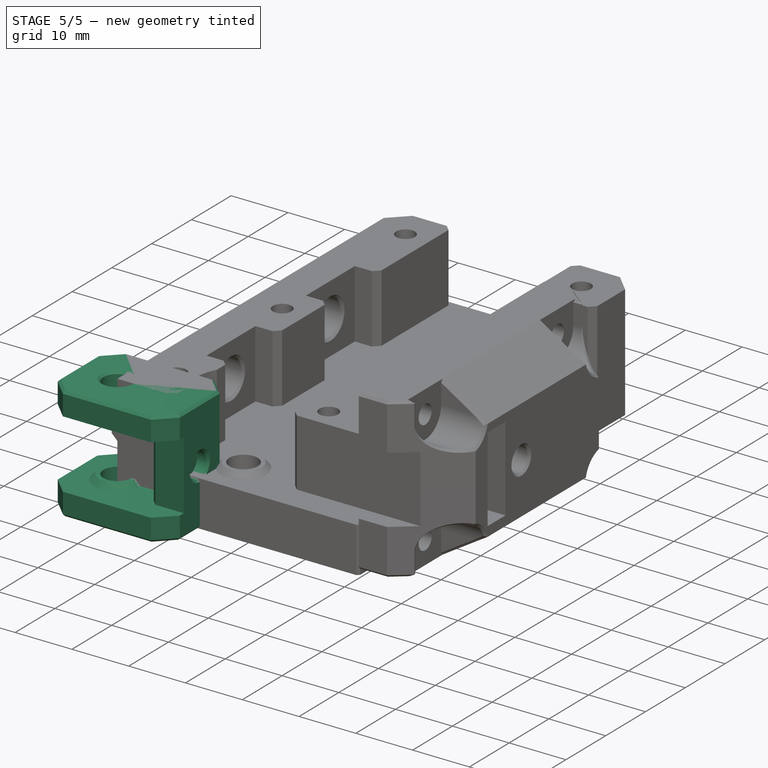
[diagram: stage 5 of 5 — iso view after this stage's code; geometry added in this stage tinted green]
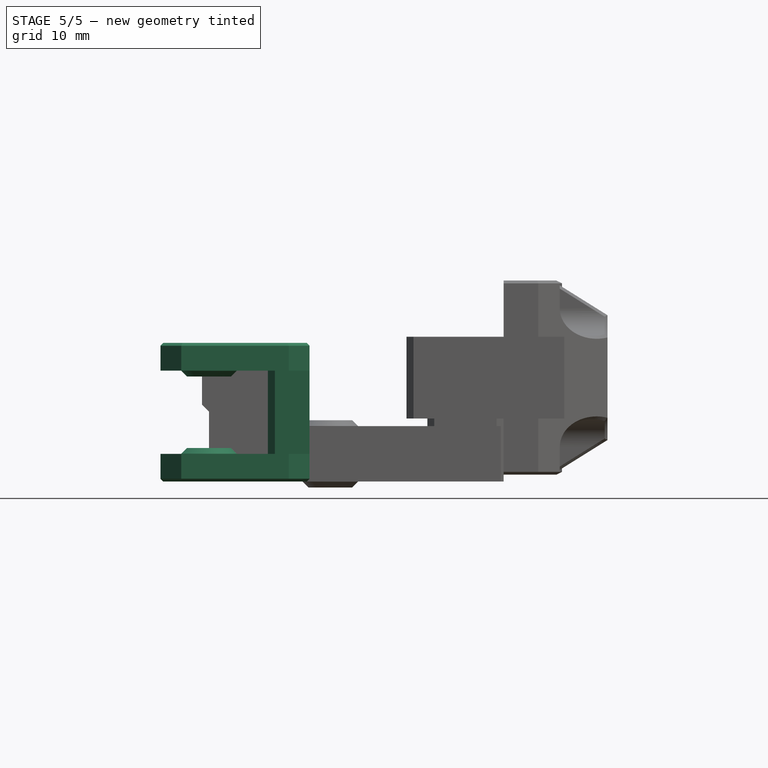
[diagram: stage 5 of 5 — front view after this stage's code; geometry added in this stage tinted green]
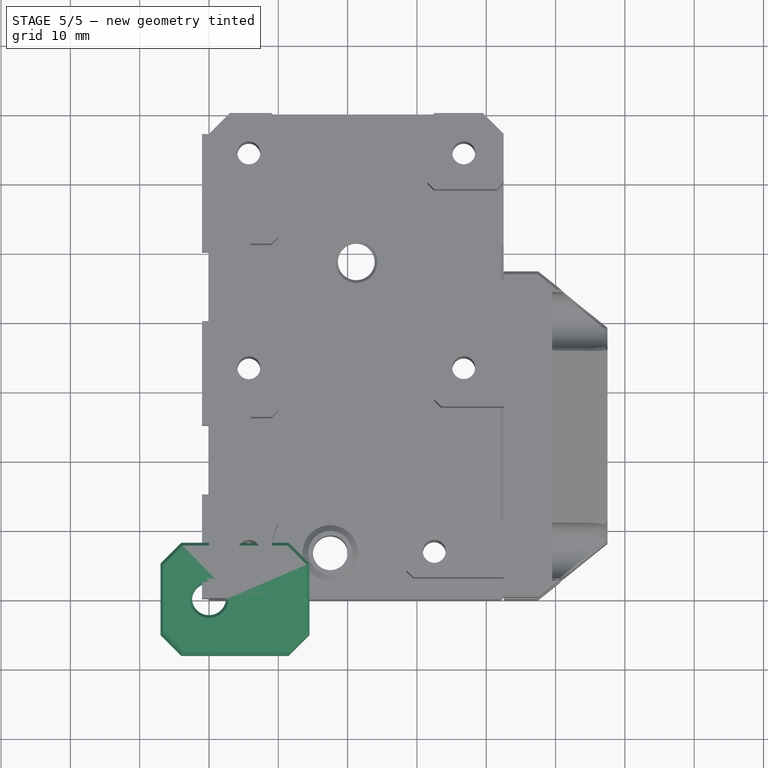
[diagram: stage 5 of 5 — top view after this stage's code; geometry added in this stage tinted green]
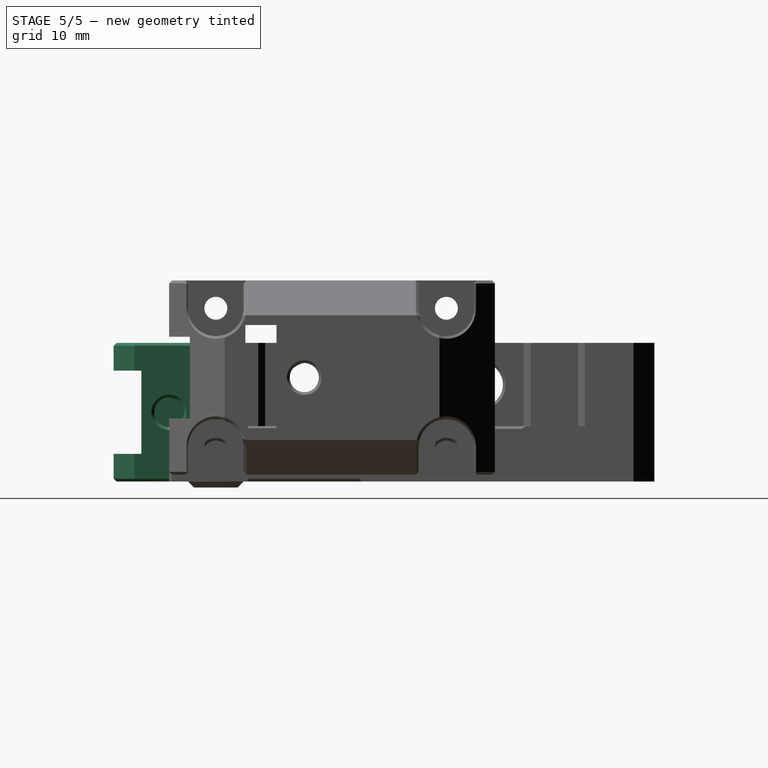
[diagram: stage 5 of 5 — right view after this stage's code; geometry added in this stage tinted green]
FEATURE [Part::Feature] Fusion006002011004053036004001001  label="motor-40mm"
  Placement = pos=(21.25,48.75,-40) rot=(0,0,-1;1.5708rad)
  shape: bbox 47 x 42 x 67 mm, 100 faces (baked)
FEATURE [Part::Feature] Cut002001  label="20t-pulley001"
  Placement = pos=(21.25,48.75,19.7) rot=(0,1,0;3.14159rad)
  shape: bbox 15 x 15 x 16 mm, 8 faces (baked)
FEATURE [Part::Feature] Cut002008018  label="MR115ZZ"
  Placement = pos=(21.25,48.75,21) rot=(0,0,1;0rad)
  shape: bbox 11 x 11 x 4 mm, 4 faces (baked)
FEATURE [Part::Feature] Cut001  label="smooth-idler-6mm"
  Placement = pos=(27.5,19.48,10) rot=(0,0,1;0rad)
  shape: bbox 15 x 15 x 10 mm, 8 faces (baked)
FEATURE [Part::Feature] Cut002008019  label="tooth-idler-6mm"
  Placement = pos=(17.5,6.74,10) rot=(0,0,1;0rad)
  shape: bbox 15 x 15 x 10 mm, 31 faces (baked)
FEATURE [Sketcher::SketchObject] Sketch
  FullyConstrained = false
  MapMode = 5
  Support = -> [XY_Plane]
  sketch-geometry (12):
    g0: Circle CenterX=21.25 CenterY=48.75 CenterZ=0 NormalX=0 NormalY=0 NormalZ=1 AngleXU=0 Radius=11.15
    g1: GeomPoint X=0 Y=70 Z=0
    g2: Circle CenterX=5.75 CenterY=64.25 CenterZ=0 NormalX=0 NormalY=0 NormalZ=1 AngleXU=0 Radius=1.65
    g3: Circle CenterX=36.75 CenterY=64.25 CenterZ=0 NormalX=0 NormalY=0 NormalZ=1 AngleXU=0 Radius=1.65
    g4: Circle CenterX=5.75 CenterY=33.25 CenterZ=0 NormalX=0 NormalY=0 NormalZ=1 AngleXU=0 Radius=1.65
    g5: Circle CenterX=36.75 CenterY=33.25 CenterZ=0 NormalX=0 NormalY=0 NormalZ=1 AngleXU=0 Radius=1.65
    g6: LineSegment StartX=0 StartY=70 StartZ=0 EndX=0 EndY=0 EndZ=0
    g7: LineSegment StartX=0 StartY=70 StartZ=0 EndX=42.5 EndY=70 EndZ=0
    g8: Circle CenterX=17.5 CenterY=6.74 CenterZ=0 NormalX=0 NormalY=0 NormalZ=1 AngleXU=0 Radius=2.5
    g9: Circle CenterX=17.5 CenterY=6.74 CenterZ=0 NormalX=0 NormalY=0 NormalZ=1 AngleXU=0 Radius=4.9886
    g10: LineSegment StartX=42.5 StartY=70 StartZ=0 EndX=42.5 EndY=0 EndZ=0
    g11: LineSegment StartX=42.5 StartY=0 StartZ=0 EndX=0 EndY=0 EndZ=0
  constraints (31):
    c: Radius(g0) = 11.15
    c: DistanceX(g-1,g0) = 21.25
    c: PointOnObject(g1,g-2)
    c: DistanceY(g-1,g1) = 70
    c: DistanceY(g0,g1) = 21.25
    c: Horizontal(g2,g3)
    c: Horizontal(g4,g5)
    c: Vertical(g4,g2)
    c: Vertical(g5,g3)
    c: Equal(g3,g2)
    c: Equal(g2,g4)
    c: Equal(g4,g5)
    c: Radius(g3) = 1.65
    c: DistanceX(g2,g3) = 31
    c: DistanceY(g5,g3) = 31
    c: DistanceY(g0,g2) = 15.5
    c: DistanceX(g2,g0) = 15.5
    c: Coincident(g6,g1)
    c: Coincident(g6,g-1)
    c: Coincident(g7,g6)
    c: Horizontal(g7)
    c: DistanceX(g7,g7) = 42.5
    c: DistanceY(g6,g8) = 6.74
    c: Radius(g8) = 2.5
    c: Coincident(g9,g8)
    c: DistanceX(g6,g8) = 17.5
    c: Coincident(g10,g7)
    c: Vertical(g10)
    c: PointOnObject(g11,g-1)
    c: Coincident(g11,g6)
    c: Coincident(g10,g11)
FEATURE [Sketcher::SketchObject] Sketch001
  FullyConstrained = true
  MapMode = 5
  Support = -> [XY_Plane001]
  sketch-geometry (5):
    g0: Circle CenterX=0 CenterY=0 CenterZ=0 NormalX=0 NormalY=0 NormalZ=1 AngleXU=0 Radius=7.5
    g1: LineSegment StartX=-7 StartY=8 StartZ=0 EndX=14.5 EndY=8 EndZ=0
    g2: LineSegment StartX=14.5 StartY=8 StartZ=0 EndX=14.5 EndY=-8 EndZ=0
    g3: LineSegment StartX=14.5 StartY=-8 StartZ=0 EndX=-7 EndY=-8 EndZ=0
    g4: LineSegment StartX=-7 StartY=-8 StartZ=0 EndX=-7 EndY=8 EndZ=0
  constraints (14):
    c: Coincident(g0,g-1)
    c: Radius(g0) = 7.5
    c: Coincident(g1,g2)
    c: Coincident(g2,g3)
    c: Coincident(g3,g4)
    c: Coincident(g4,g1)
    c: Horizontal(g1)
    c: Horizontal(g3)
    c: Vertical(g2)
    c: Vertical(g4)
    c: DistanceY(g4,g4) = 16
    c: DistanceY(g-1,g1) = 8
    c: DistanceX(g1,g-1) = 7
    c: DistanceX(g-1,g1) = 14.5
FEATURE [PartDesign::Pad] Pad
  Direction = (1,1,1)
  Length = 20
  Length2 = 100
  Profile = -> Sketch001
  Type = 0
FEATURE [PartDesign::Plane] DatumPlane
  AttachmentOffset = pos=(0,0,10) rot=(0,0,1;0rad)
  Length = 60
  MapMode = 5
  Placement = pos=(0,0,10) rot=(0,0,1;0rad)
  ResizeMode = 0
  Support = -> [XY_Plane001]
  Width = 60
FEATURE [Sketcher::SketchObject] Sketch002
  ExternalGeometry = -> [Pad]
  FullyConstrained = true
  MapMode = 5
  Placement = pos=(0,0,10) rot=(0,0,1;0rad)
  Support = -> [DatumPlane]
  sketch-geometry (7):
    g0: LineSegment StartX=-7 StartY=8 StartZ=0 EndX=5.5 EndY=8 EndZ=0
    g1: LineSegment StartX=5.5 StartY=8 StartZ=0 EndX=8.5 EndY=4 EndZ=0
    g2: LineSegment StartX=8.5 StartY=4 StartZ=0 EndX=8.5 EndY=-4 EndZ=0
    g3: LineSegment StartX=8.5 StartY=-4 StartZ=0 EndX=5.5 EndY=-8 EndZ=0
    g4: LineSegment StartX=5.5 StartY=-8 StartZ=0 EndX=-7 EndY=-8 EndZ=0
    g5: Circle CenterX=0 CenterY=0 CenterZ=0 NormalX=0 NormalY=0 NormalZ=1 AngleXU=0 Radius=7.5
    g6: LineSegment StartX=-7 StartY=8 StartZ=0 EndX=-7 EndY=-8 EndZ=0
  constraints (18):
    c: Coincident(g-3,g0)
    c: Horizontal(g0)
    c: Coincident(g0,g1)
    c: Coincident(g1,g2)
    c: Vertical(g2)
    c: Coincident(g2,g3)
    c: Coincident(g3,g4)
    c: Coincident(g4,g-3)
    c: Horizontal(g4)
    c: Coincident(g5,g-1)
    c: Radius(g5) = 7.5
    c: DistanceX(g-1,g1) = 8.5
    c: DistanceY(g1,g0) = 4
    c: DistanceY(g3,g2) = 4
    c: DistanceX(g0,g1) = 3
    c: DistanceX(g3,g2) = 3
    c: Coincident(g6,g0)
    c: Coincident(g6,g4)
FEATURE [PartDesign::Pocket] Pocket
  BaseFeature = -> Pad
  Length = 12
  Length2 = 100
  Midplane = true
  Profile = -> Sketch002
  Type = 0
FEATURE [Sketcher::SketchObject] Sketch003
  FullyConstrained = true
  MapMode = 5
  Placement = pos=(0,0,20) rot=(0,0,1;0rad)
  Support = -> [Pocket]
  sketch-geometry (1):
    g0: Circle CenterX=0 CenterY=0 CenterZ=0 NormalX=0 NormalY=0 NormalZ=1 AngleXU=0 Radius=2.45
  constraints (2):
    c: Coincident(g0,g-1)
    c: Radius(g0) = 2.45
FEATURE [PartDesign::Pocket] Pocket001
  BaseFeature = -> Pocket
  Length = 5
  Length2 = 100
  Profile = -> Sketch003
  Type = 1
FEATURE [Sketcher::SketchObject] Sketch004
  ExternalGeometry = -> [Pocket001]
  FullyConstrained = true
  MapMode = 5
  Placement = pos=(0,0,4) rot=(0,0,1;0rad)
  Support = -> [Pocket001]
  sketch-geometry (2):
    g0: Circle CenterX=0 CenterY=0 CenterZ=0 NormalX=0 NormalY=0 NormalZ=1 AngleXU=0 Radius=4
    g1: Circle CenterX=0 CenterY=0 CenterZ=0 NormalX=0 NormalY=0 NormalZ=1 AngleXU=0 Radius=2.45
  constraints (4):
    c: Coincident(g0,g-1)
    c: Radius(g0) = 4
    c: Coincident(g1,g0)
    c: Radius(g1) = 2.45
FEATURE [PartDesign::Pad] Pad001
  BaseFeature = -> Pocket001
  Direction = (1,1,1)
  Length = 0.85
  Length2 = 100
  Profile = -> Sketch004
  Type = 0
FEATURE [Sketcher::SketchObject] Sketch005
  ExternalGeometry = -> [Pad001]
  FullyConstrained = true
  MapMode = 5
  Placement = pos=(0,0,16) rot=(1,0,0;3.14159rad)
  Support = -> [Pad001]
  sketch-geometry (2):
    g0: Circle CenterX=0 CenterY=0 CenterZ=0 NormalX=0 NormalY=0 NormalZ=1 AngleXU=0 Radius=4
    g1: Circle CenterX=0 CenterY=0 CenterZ=0 NormalX=0 NormalY=0 NormalZ=1 AngleXU=0 Radius=2.45
  constraints (4):
    c: Coincident(g0,g-1)
    c: Coincident(g1,g0)
    c: Radius(g1) = 2.45
    c: Radius(g0) = 4
FEATURE [PartDesign::Pad] Pad002
  BaseFeature = -> Pad001
  Direction = (1,1,1)
  Length = 0.85
  Length2 = 100
  Profile = -> Sketch005
  Type = 0
FEATURE [PartDesign::Chamfer] Chamfer
  Angle = 45
  Base = -> Pad002 [Edge42,Edge40]
  BaseFeature = -> Pad002
  ChamferType = 0
  FlipDirection = false
  Size = 0.84
  Size2 = 1
  SupportTransform = false
FEATURE [PartDesign::Chamfer] Chamfer001
  Angle = 45
  Base = -> Chamfer [Edge19,Edge25,Edge16,Edge21]
  BaseFeature = -> Chamfer
  ChamferType = 0
  FlipDirection = false
  Size = 3
  Size2 = 1
  SupportTransform = false
FEATURE [PartDesign::Chamfer] Chamfer002
  Angle = 45
  Base = -> Chamfer001 [Edge31,Edge12]
  BaseFeature = -> Chamfer001
  ChamferType = 0
  FlipDirection = false
  Size = 3
  Size2 = 1
  SupportTransform = false
FEATURE [PartDesign::Chamfer] Chamfer003
  Angle = 45
  Base = -> Chamfer002 [Face5,Face2]
  BaseFeature = -> Chamfer002
  ChamferType = 0
  FlipDirection = false
  Size = 0.4
  Size2 = 1
  SupportTransform = false
FEATURE [Sketcher::SketchObject] Sketch010
  ExternalGeometry = -> [Chamfer003]
  FullyConstrained = true
  MapMode = 5
  Placement = pos=(0,0,10) rot=(0,0,1;0rad)
  Support = -> [DatumPlane]
  sketch-geometry (4):
    g0: LineSegment StartX=14.5 StartY=-4 StartZ=0 EndX=4.5 EndY=-4 EndZ=0
    g1: LineSegment StartX=4.5 StartY=-4 StartZ=0 EndX=4.5 EndY=-8 EndZ=0
    g2: LineSegment StartX=4.5 StartY=-8 StartZ=0 EndX=14.5 EndY=-8 EndZ=0
    g3: LineSegment StartX=14.5 StartY=-8 StartZ=0 EndX=14.5 EndY=-4 EndZ=0
  constraints (12):
    c: Coincident(g0,g1)
    c: Coincident(g1,g2)
    c: Coincident(g2,g3)
    c: Coincident(g3,g0)
    c: Horizontal(g0)
    c: Horizontal(g2)
    c: Vertical(g1)
    c: Vertical(g3)
    c: PointOnObject(g0,g-3)
    c: Horizontal(g-4,g2)
    c: DistanceY(g3,g3) = 4
    c: DistanceX(g0,g0) = 10
FEATURE [PartDesign::Pocket] Pocket004
  BaseFeature = -> Chamfer003
  Length = 12
  Length2 = 100
  Midplane = true
  Profile = -> Sketch010
  Refine = true
  Type = 0
FEATURE [Sketcher::SketchObject] Sketch021
  ExternalGeometry = -> [Pocket004]
  FullyConstrained = true
  MapMode = 5
  Placement = pos=(14.5,0,0) rot=(0.57735,0.57735,0.57735;2.0944rad)
  Support = -> [Pocket004]
  sketch-geometry (1):
    g0: Circle CenterX=4e-16 CenterY=10 CenterZ=0 NormalX=0 NormalY=0 NormalZ=1 AngleXU=0 Radius=2.15
  constraints (5):
    c: DistanceX(g-3,g-4) = 10
    c: DistanceY(g-5,g-3) = 12
    c: DistanceX(g-3,g0) = 5
    c: DistanceY(g0,g-3) = 6
    c: Radius(g0) = 2.15
FEATURE [PartDesign::Pocket] Pocket012
  BaseFeature = -> Pocket004
  Length = 2
  Length2 = 100
  Profile = -> Sketch021
  Type = 0
FEATURE [PartDesign::Chamfer] Chamfer010
  Angle = 45
  Base = -> Pocket012 [Edge52]
  BaseFeature = -> Pocket012
  ChamferType = 0
  FlipDirection = false
  Size = 0.4
  Size2 = 1
  SupportTransform = false
FEATURE [PartDesign::Chamfer] Chamfer011
  Angle = 45
  Base = -> Chamfer010 [Edge37]
  BaseFeature = -> Chamfer010
  ChamferType = 0
  FlipDirection = false
  Size = 1
  Size2 = 1
  SupportTransform = false
FEATURE [PartDesign::Chamfer] Chamfer021
  Angle = 45
  Base = -> Pad012 [Edge297]
  BaseFeature = -> Pad012
  ChamferType = 0
  FlipDirection = false
  Refine = true
  Size = 0.4
  Size2 = 1
  SupportTransform = false
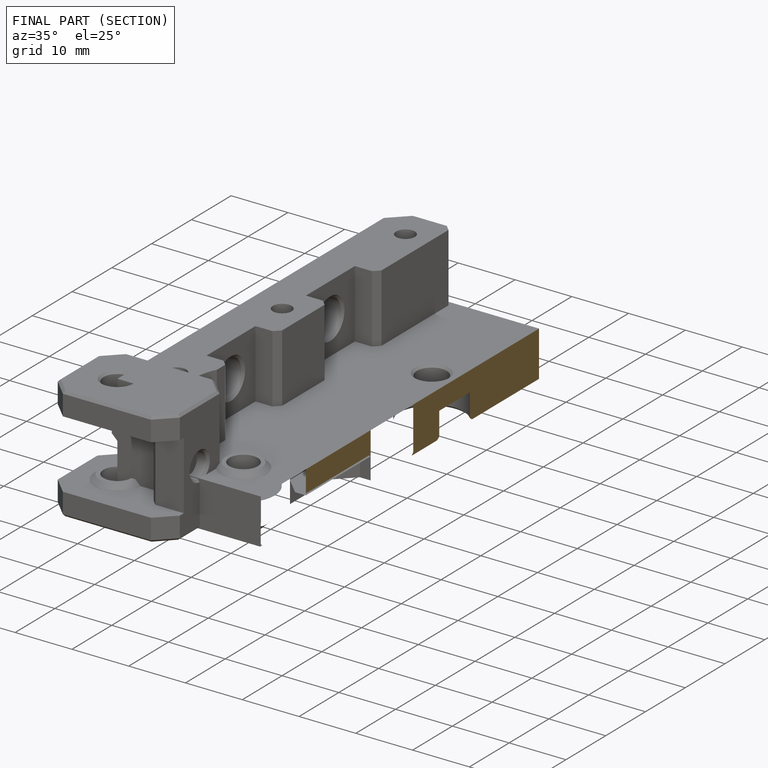
[diagram: finished part — half-section view (interior)]
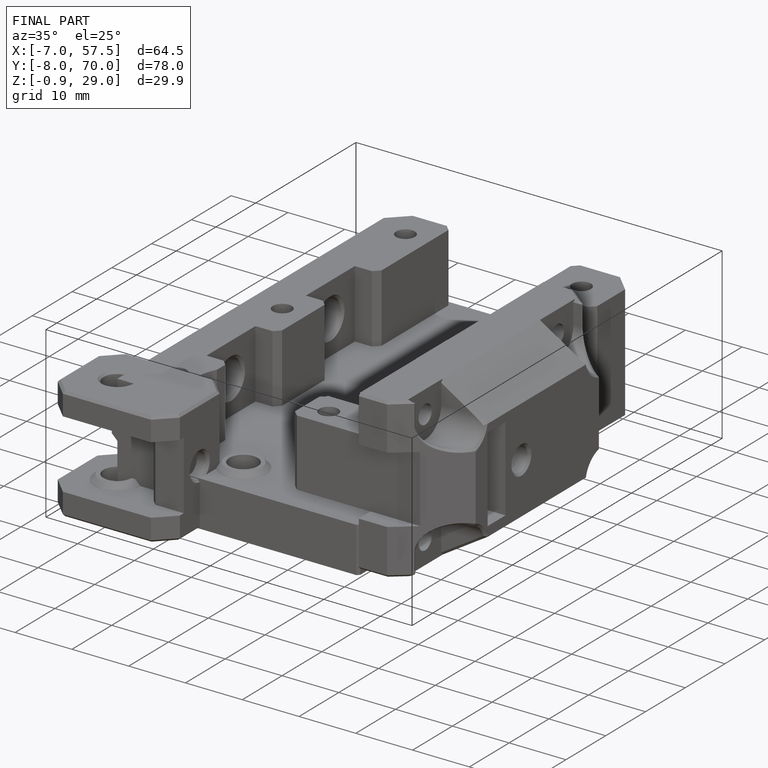
[diagram: finished part — iso view with bounding-box wireframe]
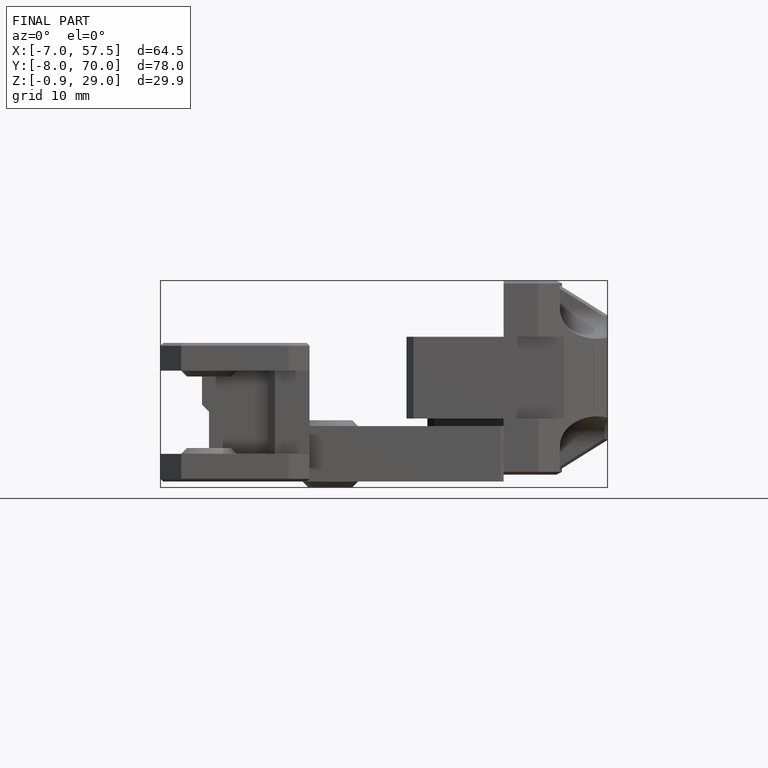
[diagram: finished part — front view with bounding-box wireframe]
